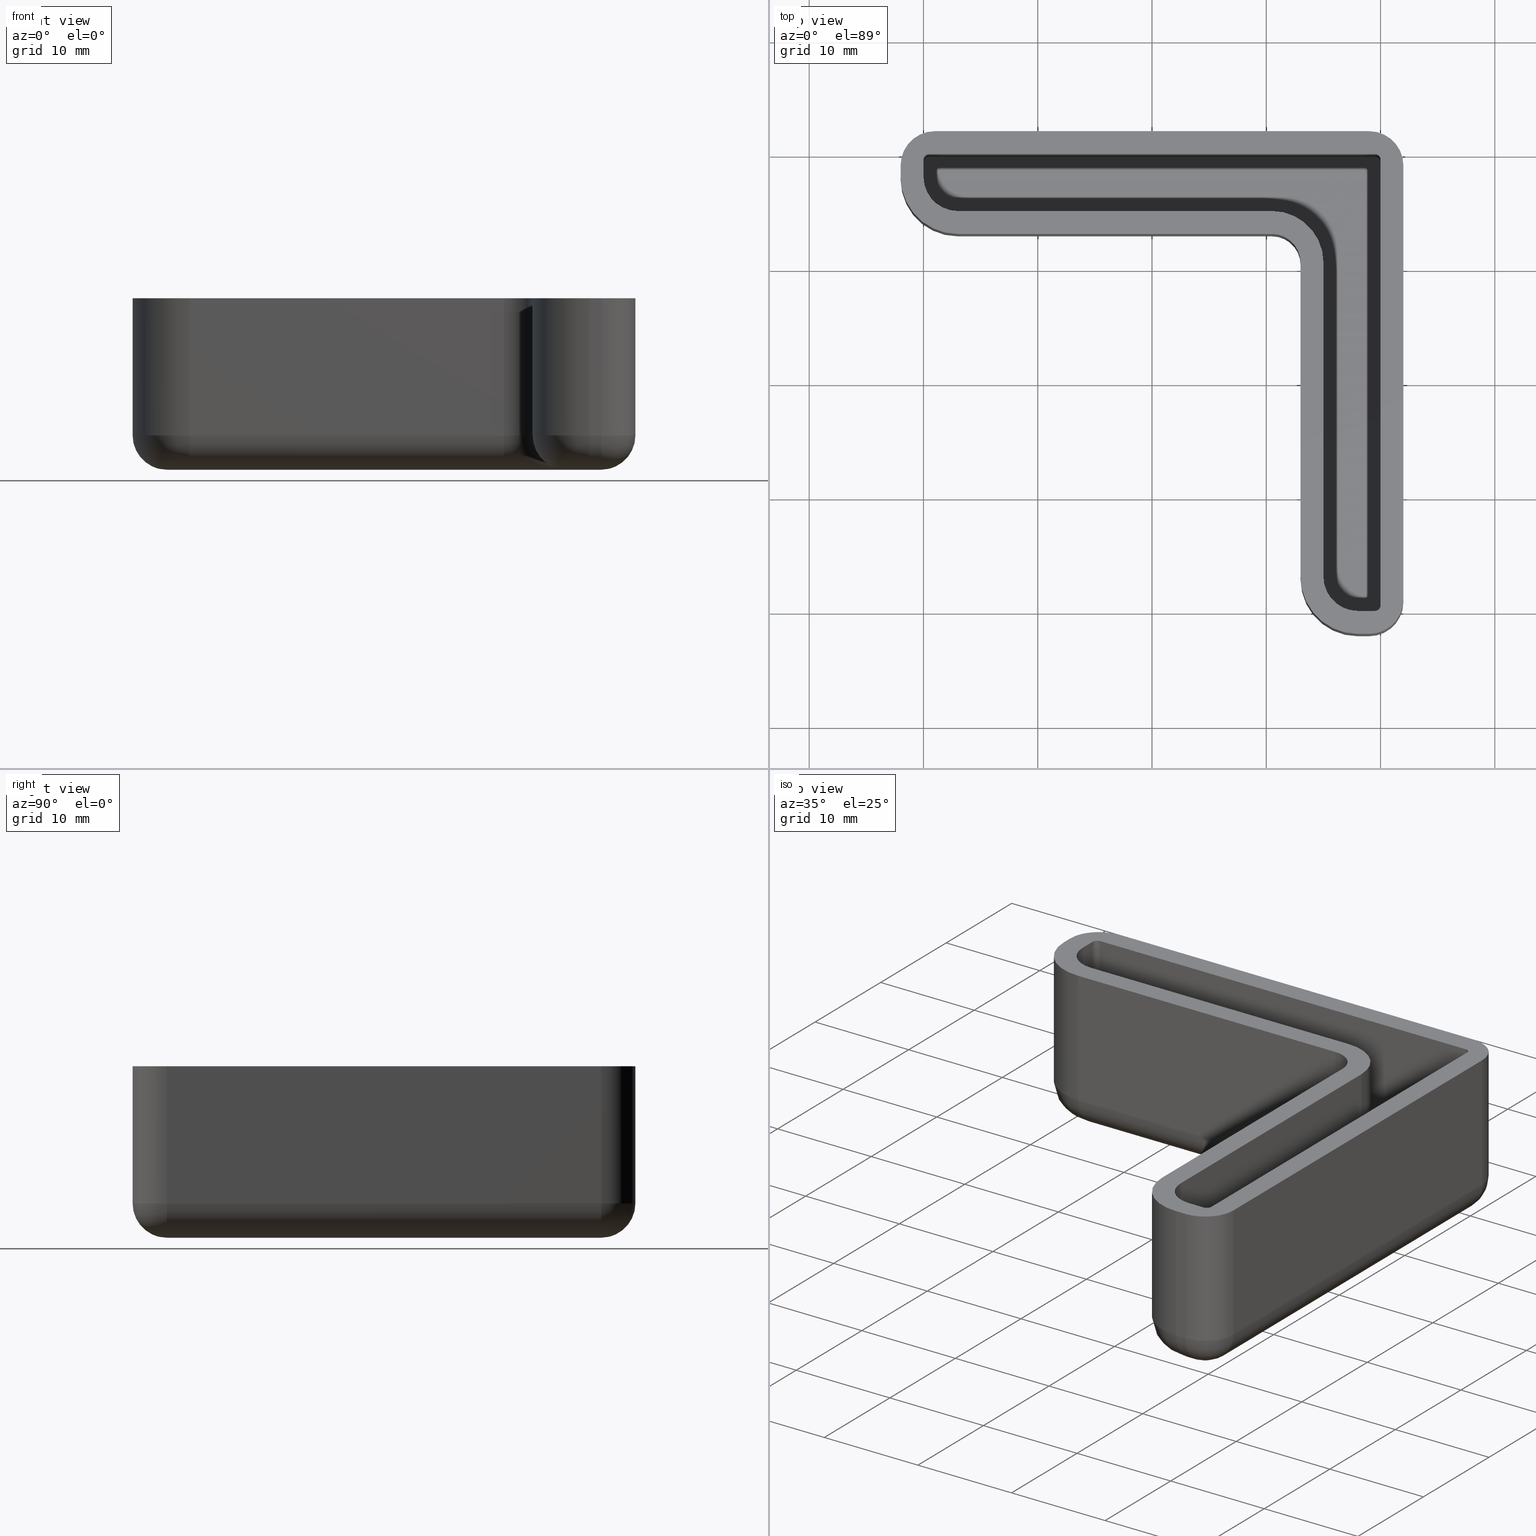
[diagram: canonical four-view strip — front | top / right | iso, engineering-drawing reading convention]
A machine part, canonical four-view strip (front | top / right | iso — engineering-drawing reading convention). The complete STEP part file that produces these views, byte-faithful:
ISO-10303-21;
HEADER;
FILE_DESCRIPTION( ( 'STEP AP203' ), '1' );
FILE_NAME( 'C:/Documents and Settings/JP/�f�X�N�g�b�v/�_�E�����[�h�pCAD�f�[�^/���ӎR�`�|/L40E/L40E.step', '2022-07-22T02:03:37', ( ' ' ), ( ' ' ), 'XStep 1.0', ' ', ' ' );
FILE_SCHEMA( ( 'CONFIG_CONTROL_DESIGN' ) );
ENDSEC;
DATA;
#1 = DESIGN_CONTEXT( '', #27, 'design' );
#2 = APPLICATION_PROTOCOL_DEFINITION( 'INTERNATIONAL STANDARD', 'config_control_design', 1994, #27 );
#3 = PRODUCT_CATEGORY_RELATIONSHIP( 'NONE', 'NONE', #28, #29 );
#4 = DATE_AND_TIME( #30, #31 );
#5 = DATE_TIME_ROLE( 'creation_date' );
#6 = DATE_TIME_ROLE( 'classification_date' );
#7 = PERSON_AND_ORGANIZATION_ROLE( 'creator' );
#8 = PERSON_AND_ORGANIZATION_ROLE( 'design_supplier' );
#9 = PERSON_AND_ORGANIZATION_ROLE( 'classification_officer' );
#10 = PERSON_AND_ORGANIZATION_ROLE( 'design_owner' );
#11 = APPROVAL_PERSON_ORGANIZATION( #32, #33, #34 );
#12 = APPROVAL_DATE_TIME( #4, #33 );
#13 = CC_DESIGN_APPROVAL( #33, ( #35, #36, #37 ) );
#14 = CC_DESIGN_DATE_AND_TIME_ASSIGNMENT( #4, #5, ( #37 ) );
#15 = CC_DESIGN_DATE_AND_TIME_ASSIGNMENT( #4, #6, ( #35 ) );
#16 = CC_DESIGN_PERSON_AND_ORGANIZATION_ASSIGNMENT( #32, #10, ( #38 ) );
#17 = CC_DESIGN_PERSON_AND_ORGANIZATION_ASSIGNMENT( #32, #7, ( #37 ) );
#18 = CC_DESIGN_PERSON_AND_ORGANIZATION_ASSIGNMENT( #32, #7, ( #36 ) );
#19 = CC_DESIGN_PERSON_AND_ORGANIZATION_ASSIGNMENT( #32, #8, ( #36 ) );
#20 = CC_DESIGN_SECURITY_CLASSIFICATION( #35, ( #36 ) );
#21 = CC_DESIGN_PERSON_AND_ORGANIZATION_ASSIGNMENT( #32, #9, ( #35 ) );
#22 = SHAPE_DEFINITION_REPRESENTATION( #39, #40 );
#23 =  ( GEOMETRIC_REPRESENTATION_CONTEXT( 3 )GLOBAL_UNCERTAINTY_ASSIGNED_CONTEXT( ( #43 ) )GLOBAL_UNIT_ASSIGNED_CONTEXT( ( #45, #46, #47 ) )REPRESENTATION_CONTEXT( 'NONE', 'WORKSPACE' ) );
#27 = APPLICATION_CONTEXT( 'CONFIGURATION CONTROLLED 3D DESIGNS OF MECHANICAL PARTS AND ASSEMBLIES' );
#28 = PRODUCT_CATEGORY( 'part', 'NONE' );
#29 = PRODUCT_RELATED_PRODUCT_CATEGORY( 'detail', ' ', ( #38 ) );
#30 = CALENDAR_DATE( 2022, 22, 6 );
#31 = LOCAL_TIME( 11, 3, 37.0000000000000, #49 );
#32 = PERSON_AND_ORGANIZATION( #50, #51 );
#33 = APPROVAL( #52, 'SOLID MODEL' );
#34 = APPROVAL_ROLE( 'APPROVED' );
#35 = SECURITY_CLASSIFICATION( '', '', #53 );
#36 = PRODUCT_DEFINITION_FORMATION_WITH_SPECIFIED_SOURCE( ' ', 'NONE', #38, .NOT_KNOWN. );
#37 = PRODUCT_DEFINITION( 'NONE', 'NONE', #36, #1 );
#38 = PRODUCT( '1', '1', 'PART-1-DESC', ( #54 ) );
#39 = PRODUCT_DEFINITION_SHAPE( 'NONE', 'NONE', #37 );
#40 = ADVANCED_BREP_SHAPE_REPRESENTATION( '1', ( #55, #56 ), #23 );
#43 = UNCERTAINTY_MEASURE_WITH_UNIT( LENGTH_MEASURE( 0.00100000000000000 ), #45, '', '' );
#45 =  ( CONVERSION_BASED_UNIT( 'MILLIMETRE', #59 )LENGTH_UNIT(  )NAMED_UNIT( #62 ) );
#46 =  ( NAMED_UNIT( #64 )PLANE_ANGLE_UNIT(  )SI_UNIT( $, .RADIAN. ) );
#47 =  ( NAMED_UNIT( #64 )SOLID_ANGLE_UNIT(  )SI_UNIT( $, .STERADIAN. ) );
#49 = COORDINATED_UNIVERSAL_TIME_OFFSET( 9, 0, .AHEAD. );
#50 = PERSON( '', 'UNSPECIFIED', $, $, $, $ );
#51 = ORGANIZATION( 'UNSPECIFIED', 'UNSPECIFIED', 'UNSPECIFIED' );
#52 = APPROVAL_STATUS( 'approved' );
#53 = SECURITY_CLASSIFICATION_LEVEL( 'unclassified' );
#54 = MECHANICAL_CONTEXT( '', #27, 'mechanical' );
#55 = MANIFOLD_SOLID_BREP( '1', #70 );
#56 = AXIS2_PLACEMENT_3D( '', #71, #72, #73 );
#59 = LENGTH_MEASURE_WITH_UNIT( LENGTH_MEASURE( 1.00000000000000 ), #74 );
#62 = DIMENSIONAL_EXPONENTS( 1.00000000000000, 0.000000000000000, 0.000000000000000, 0.000000000000000, 0.000000000000000, 0.000000000000000, 0.000000000000000 );
#64 = DIMENSIONAL_EXPONENTS( 0.000000000000000, 0.000000000000000, 0.000000000000000, 0.000000000000000, 0.000000000000000, 0.000000000000000, 0.000000000000000 );
#70 = CLOSED_SHELL( '', ( #75, #76, #77, #78, #79, #80, #81, #82, #83, #84, #85, #86, #87, #88, #89, #90, #91, #92, #93, #94, #95, #96, #97, #98, #99, #100, #101, #102, #103, #104, #105, #106, #107, #108, #109, #110, #111, #112, #113 ) );
#71 = CARTESIAN_POINT( '', ( 0.000000000000000, 0.000000000000000, 0.000000000000000 ) );
#72 = DIRECTION( '', ( 0.000000000000000, 0.000000000000000, 1.00000000000000 ) );
#73 = DIRECTION( '', ( 1.00000000000000, 0.000000000000000, 0.000000000000000 ) );
#74 =  ( NAMED_UNIT( #62 )LENGTH_UNIT(  )SI_UNIT( .MILLI., .METRE. ) );
#75 = ADVANCED_FACE( '', ( #115, #116 ), #117, .T. );
#76 = ADVANCED_FACE( '', ( #118 ), #119, .T. );
#77 = ADVANCED_FACE( '', ( #120 ), #121, .F. );
#78 = ADVANCED_FACE( '', ( #122 ), #123, .T. );
#79 = ADVANCED_FACE( '', ( #124 ), #125, .T. );
#80 = ADVANCED_FACE( '', ( #126 ), #127, .T. );
#81 = ADVANCED_FACE( '', ( #128 ), #129, .T. );
#82 = ADVANCED_FACE( '', ( #130 ), #131, .T. );
#83 = ADVANCED_FACE( '', ( #132 ), #133, .T. );
#84 = ADVANCED_FACE( '', ( #134 ), #135, .T. );
#85 = ADVANCED_FACE( '', ( #136 ), #137, .T. );
#86 = ADVANCED_FACE( '', ( #138 ), #139, .T. );
#87 = ADVANCED_FACE( '', ( #140 ), #141, .F. );
#88 = ADVANCED_FACE( '', ( #142 ), #143, .T. );
#89 = ADVANCED_FACE( '', ( #144 ), #145, .T. );
#90 = ADVANCED_FACE( '', ( #146 ), #147, .T. );
#91 = ADVANCED_FACE( '', ( #148 ), #149, .F. );
#92 = ADVANCED_FACE( '', ( #150 ), #151, .T. );
#93 = ADVANCED_FACE( '', ( #152 ), #153, .T. );
#94 = ADVANCED_FACE( '', ( #154 ), #155, .T. );
#95 = ADVANCED_FACE( '', ( #156 ), #157, .T. );
#96 = ADVANCED_FACE( '', ( #158 ), #159, .T. );
#97 = ADVANCED_FACE( '', ( #160 ), #161, .T. );
#98 = ADVANCED_FACE( '', ( #162 ), #163, .T. );
#99 = ADVANCED_FACE( '', ( #164 ), #165, .T. );
#100 = ADVANCED_FACE( '', ( #166 ), #167, .T. );
#101 = ADVANCED_FACE( '', ( #168 ), #169, .T. );
#102 = ADVANCED_FACE( '', ( #170 ), #171, .T. );
#103 = ADVANCED_FACE( '', ( #172 ), #173, .T. );
#104 = ADVANCED_FACE( '', ( #174 ), #175, .T. );
#105 = ADVANCED_FACE( '', ( #176 ), #177, .T. );
#106 = ADVANCED_FACE( '', ( #178 ), #179, .F. );
#107 = ADVANCED_FACE( '', ( #180 ), #181, .T. );
#108 = ADVANCED_FACE( '', ( #182 ), #183, .T. );
#109 = ADVANCED_FACE( '', ( #184 ), #185, .F. );
#110 = ADVANCED_FACE( '', ( #186 ), #187, .T. );
#111 = ADVANCED_FACE( '', ( #188 ), #189, .F. );
#112 = ADVANCED_FACE( '', ( #190 ), #191, .T. );
#113 = ADVANCED_FACE( '', ( #192 ), #193, .F. );
#115 = FACE_OUTER_BOUND( '', #194, .T. );
#116 = FACE_BOUND( '', #195, .T. );
#117 = PLANE( '', #196 );
#118 = FACE_OUTER_BOUND( '', #197, .T. );
#119 = CYLINDRICAL_SURFACE( '', #198, 3.00000000000000 );
#120 = FACE_OUTER_BOUND( '', #199, .T. );
#121 = CYLINDRICAL_SURFACE( '', #200, 0.500000000000000 );
#122 = FACE_OUTER_BOUND( '', #201, .T. );
#123 = PLANE( '', #202 );
#124 = FACE_OUTER_BOUND( '', #203, .T. );
#125 = PLANE( '', #204 );
#126 = FACE_OUTER_BOUND( '', #205, .T. );
#127 = PLANE( '', #206 );
#128 = FACE_OUTER_BOUND( '', #207, .T. );
#129 = CYLINDRICAL_SURFACE( '', #208, 3.00000000000000 );
#130 = FACE_OUTER_BOUND( '', #209, .T. );
#131 = PLANE( '', #210 );
#132 = FACE_OUTER_BOUND( '', #211, .T. );
#133 = CYLINDRICAL_SURFACE( '', #212, 3.00000000000000 );
#134 = FACE_OUTER_BOUND( '', #213, .T. );
#135 = PLANE( '', #214 );
#136 = FACE_OUTER_BOUND( '', #215, .T. );
#137 = CYLINDRICAL_SURFACE( '', #216, 5.00000000000000 );
#138 = FACE_OUTER_BOUND( '', #217, .T. );
#139 = PLANE( '', #218 );
#140 = FACE_OUTER_BOUND( '', #219, .T. );
#141 = CYLINDRICAL_SURFACE( '', #220, 2.50000000000000 );
#142 = FACE_OUTER_BOUND( '', #221, .T. );
#143 = PLANE( '', #222 );
#144 = FACE_OUTER_BOUND( '', #223, .T. );
#145 = CYLINDRICAL_SURFACE( '', #224, 5.00000000000000 );
#146 = FACE_OUTER_BOUND( '', #225, .T. );
#147 = PLANE( '', #226 );
#148 = FACE_OUTER_BOUND( '', #227, .T. );
#149 = PLANE( '', #228 );
#150 = FACE_OUTER_BOUND( '', #229, .T. );
#151 = CYLINDRICAL_SURFACE( '', #230, 3.00000000000000 );
#152 = FACE_OUTER_BOUND( '', #231, .T. );
#153 = SPHERICAL_SURFACE( '', #232, 3.00000000000000 );
#154 = FACE_OUTER_BOUND( '', #233, .T. );
#155 = SPHERICAL_SURFACE( '', #234, 3.00000000000000 );
#156 = FACE_OUTER_BOUND( '', #235, .T. );
#157 = CYLINDRICAL_SURFACE( '', #236, 3.00000000000000 );
#158 = FACE_OUTER_BOUND( '', #237, .T. );
#159 = CYLINDRICAL_SURFACE( '', #238, 3.00000000000000 );
#160 = FACE_OUTER_BOUND( '', #239, .T. );
#161 = SPHERICAL_SURFACE( '', #240, 3.00000000000000 );
#162 = FACE_OUTER_BOUND( '', #241, .T. );
#163 = ( B_SPLINE_SURFACE( 3, 3, ( ( #243, #244, #245, #246 ), ( #247, #248, #249, #250 ), ( #251, #252, #253, #254 ), ( #255, #256, #257, #258 ) ), .UNSPECIFIED., .F., .F., .F. )B_SPLINE_SURFACE_WITH_KNOTS( ( 4, 4 ), ( 4, 4 ), ( 0.000000000000000, 1.57079632679490 ), ( -1.57079632679490, 0.000000000000000 ), .UNSPECIFIED. )RATIONAL_B_SPLINE_SURFACE( ( ( 1.00000000000000, 0.804737854124365, 0.804737854124365, 1.00000000000000 ), ( 0.804737854124365, 0.647603013860688, 0.647603013860688, 0.804737854124365 ), ( 0.804737854124365, 0.647603013860688, 0.647603013860688, 0.804737854124365 ), ( 1.00000000000000, 0.804737854124365, 0.804737854124365, 1.00000000000000 ) ) )BOUNDED_SURFACE(  )REPRESENTATION_ITEM( '' )GEOMETRIC_REPRESENTATION_ITEM(  )SURFACE(  ) );
#164 = FACE_OUTER_BOUND( '', #265, .T. );
#165 = CYLINDRICAL_SURFACE( '', #266, 3.00000000000000 );
#166 = FACE_OUTER_BOUND( '', #267, .T. );
#167 = CYLINDRICAL_SURFACE( '', #268, 3.00000000000000 );
#168 = FACE_OUTER_BOUND( '', #269, .T. );
#169 = ( B_SPLINE_SURFACE( 3, 3, ( ( #271, #272, #273, #274 ), ( #275, #276, #277, #278 ), ( #279, #280, #281, #282 ), ( #283, #284, #285, #286 ) ), .UNSPECIFIED., .F., .F., .F. )B_SPLINE_SURFACE_WITH_KNOTS( ( 4, 4 ), ( 4, 4 ), ( -1.77635683940025E-015, 1.57079632679490 ), ( -1.57079632679490, 0.000000000000000 ), .UNSPECIFIED. )RATIONAL_B_SPLINE_SURFACE( ( ( 1.00000000000000, 0.804737854124365, 0.804737854124365, 1.00000000000000 ), ( 0.804737854124365, 0.647603013860688, 0.647603013860688, 0.804737854124365 ), ( 0.804737854124365, 0.647603013860688, 0.647603013860688, 0.804737854124365 ), ( 1.00000000000000, 0.804737854124365, 0.804737854124365, 1.00000000000000 ) ) )BOUNDED_SURFACE(  )REPRESENTATION_ITEM( '' )GEOMETRIC_REPRESENTATION_ITEM(  )SURFACE(  ) );
#170 = FACE_OUTER_BOUND( '', #293, .T. );
#171 = TOROIDAL_SURFACE( '', #294, 5.50000000000000, 3.00000000000000 );
#172 = FACE_OUTER_BOUND( '', #295, .T. );
#173 = CYLINDRICAL_SURFACE( '', #296, 3.00000000000000 );
#174 = FACE_OUTER_BOUND( '', #297, .T. );
#175 = PLANE( '', #298 );
#176 = FACE_OUTER_BOUND( '', #299, .T. );
#177 = PLANE( '', #300 );
#178 = FACE_OUTER_BOUND( '', #301, .T. );
#179 = CYLINDRICAL_SURFACE( '', #302, 3.00000000000000 );
#180 = FACE_OUTER_BOUND( '', #303, .T. );
#181 = CYLINDRICAL_SURFACE( '', #304, 4.50000000000000 );
#182 = FACE_OUTER_BOUND( '', #305, .T. );
#183 = PLANE( '', #306 );
#184 = FACE_OUTER_BOUND( '', #307, .T. );
#185 = CYLINDRICAL_SURFACE( '', #308, 3.00000000000000 );
#186 = FACE_OUTER_BOUND( '', #309, .T. );
#187 = PLANE( '', #310 );
#188 = FACE_OUTER_BOUND( '', #311, .T. );
#189 = CYLINDRICAL_SURFACE( '', #312, 0.500000000000000 );
#190 = FACE_OUTER_BOUND( '', #313, .T. );
#191 = PLANE( '', #314 );
#192 = FACE_OUTER_BOUND( '', #315, .T. );
#193 = CYLINDRICAL_SURFACE( '', #316, 0.500000000000000 );
#194 = EDGE_LOOP( '', ( #317, #318, #319, #320, #321, #322, #323, #324, #325, #326, #327, #328 ) );
#195 = EDGE_LOOP( '', ( #329, #330, #331, #332, #333, #334, #335, #336, #337, #338, #339, #340 ) );
#196 = AXIS2_PLACEMENT_3D( '', #341, #342, #343 );
#197 = EDGE_LOOP( '', ( #344, #345, #346, #347 ) );
#198 = AXIS2_PLACEMENT_3D( '', #348, #349, #350 );
#199 = EDGE_LOOP( '', ( #351, #352, #353, #354 ) );
#200 = AXIS2_PLACEMENT_3D( '', #355, #356, #357 );
#201 = EDGE_LOOP( '', ( #358, #359, #360, #361 ) );
#202 = AXIS2_PLACEMENT_3D( '', #362, #363, #364 );
#203 = EDGE_LOOP( '', ( #365, #366, #367, #368, #369, #370, #371, #372, #373, #374, #375, #376 ) );
#204 = AXIS2_PLACEMENT_3D( '', #377, #378, #379 );
#205 = EDGE_LOOP( '', ( #380, #381, #382, #383 ) );
#206 = AXIS2_PLACEMENT_3D( '', #384, #385, #386 );
#207 = EDGE_LOOP( '', ( #387, #388, #389, #390 ) );
#208 = AXIS2_PLACEMENT_3D( '', #391, #392, #393 );
#209 = EDGE_LOOP( '', ( #394, #395, #396, #397 ) );
#210 = AXIS2_PLACEMENT_3D( '', #398, #399, #400 );
#211 = EDGE_LOOP( '', ( #401, #402, #403, #404 ) );
#212 = AXIS2_PLACEMENT_3D( '', #405, #406, #407 );
#213 = EDGE_LOOP( '', ( #408, #409, #410, #411 ) );
#214 = AXIS2_PLACEMENT_3D( '', #412, #413, #414 );
#215 = EDGE_LOOP( '', ( #415, #416, #417, #418 ) );
#216 = AXIS2_PLACEMENT_3D( '', #419, #420, #421 );
#217 = EDGE_LOOP( '', ( #422, #423, #424, #425 ) );
#218 = AXIS2_PLACEMENT_3D( '', #426, #427, #428 );
#219 = EDGE_LOOP( '', ( #429, #430, #431, #432 ) );
#220 = AXIS2_PLACEMENT_3D( '', #433, #434, #435 );
#221 = EDGE_LOOP( '', ( #436, #437, #438, #439 ) );
#222 = AXIS2_PLACEMENT_3D( '', #440, #441, #442 );
#223 = EDGE_LOOP( '', ( #443, #444, #445, #446 ) );
#224 = AXIS2_PLACEMENT_3D( '', #447, #448, #449 );
#225 = EDGE_LOOP( '', ( #450, #451, #452, #453 ) );
#226 = AXIS2_PLACEMENT_3D( '', #454, #455, #456 );
#227 = EDGE_LOOP( '', ( #457, #458, #459, #460, #461, #462, #463, #464, #465 ) );
#228 = AXIS2_PLACEMENT_3D( '', #466, #467, #468 );
#229 = EDGE_LOOP( '', ( #469, #470, #471, #472 ) );
#230 = AXIS2_PLACEMENT_3D( '', #473, #474, #475 );
#231 = EDGE_LOOP( '', ( #476, #477, #478 ) );
#232 = AXIS2_PLACEMENT_3D( '', #479, #480, #481 );
#233 = EDGE_LOOP( '', ( #482, #483, #484 ) );
#234 = AXIS2_PLACEMENT_3D( '', #485, #486, #487 );
#235 = EDGE_LOOP( '', ( #488, #489, #490, #491 ) );
#236 = AXIS2_PLACEMENT_3D( '', #492, #493, #494 );
#237 = EDGE_LOOP( '', ( #495, #496, #497, #498 ) );
#238 = AXIS2_PLACEMENT_3D( '', #499, #500, #501 );
#239 = EDGE_LOOP( '', ( #502, #503, #504 ) );
#240 = AXIS2_PLACEMENT_3D( '', #505, #506, #507 );
#241 = EDGE_LOOP( '', ( #508, #509, #510, #511 ) );
#243 = CARTESIAN_POINT( '', ( -7.00000000000001, -37.0000000000000, -12.0000000000000 ) );
#244 = CARTESIAN_POINT( '', ( -7.00000000000001, -39.9289321881345, -12.0000000000000 ) );
#245 = CARTESIAN_POINT( '', ( -4.92893218813453, -42.0000000000000, -12.0000000000000 ) );
#246 = CARTESIAN_POINT( '', ( -2.00000000000001, -42.0000000000000, -12.0000000000000 ) );
#247 = CARTESIAN_POINT( '', ( -7.00000000000001, -37.0000000000000, -13.7573593128807 ) );
#248 = CARTESIAN_POINT( '', ( -7.00000000000001, -39.9289321881345, -13.7573593128807 ) );
#249 = CARTESIAN_POINT( '', ( -4.92893218813453, -42.0000000000000, -13.7573593128807 ) );
#250 = CARTESIAN_POINT( '', ( -2.00000000000001, -42.0000000000000, -13.7573593128807 ) );
#251 = CARTESIAN_POINT( '', ( -5.75735931288072, -37.0000000000000, -15.0000000000000 ) );
#252 = CARTESIAN_POINT( '', ( -5.75735931288072, -39.2010101267767, -15.0000000000000 ) );
#253 = CARTESIAN_POINT( '', ( -4.20101012677667, -40.7573593128807, -15.0000000000000 ) );
#254 = CARTESIAN_POINT( '', ( -2.00000000000001, -40.7573593128807, -15.0000000000000 ) );
#255 = CARTESIAN_POINT( '', ( -4.00000000000001, -37.0000000000000, -15.0000000000000 ) );
#256 = CARTESIAN_POINT( '', ( -4.00000000000001, -38.1715728752538, -15.0000000000000 ) );
#257 = CARTESIAN_POINT( '', ( -3.17157287525382, -39.0000000000000, -15.0000000000000 ) );
#258 = CARTESIAN_POINT( '', ( -2.00000000000001, -39.0000000000000, -15.0000000000000 ) );
#265 = EDGE_LOOP( '', ( #512, #513, #514, #515 ) );
#266 = AXIS2_PLACEMENT_3D( '', #516, #517, #518 );
#267 = EDGE_LOOP( '', ( #519, #520, #521, #522 ) );
#268 = AXIS2_PLACEMENT_3D( '', #523, #524, #525 );
#269 = EDGE_LOOP( '', ( #526, #527, #528, #529 ) );
#271 = CARTESIAN_POINT( '', ( -42.0000000000000, -1.99999999999999, -12.0000000000000 ) );
#272 = CARTESIAN_POINT( '', ( -42.0000000000000, -4.92893218813452, -12.0000000000000 ) );
#273 = CARTESIAN_POINT( '', ( -39.9289321881345, -7.00000000000001, -12.0000000000000 ) );
#274 = CARTESIAN_POINT( '', ( -37.0000000000000, -7.00000000000001, -12.0000000000000 ) );
#275 = CARTESIAN_POINT( '', ( -42.0000000000000, -1.99999999999999, -13.7573593128807 ) );
#276 = CARTESIAN_POINT( '', ( -42.0000000000000, -4.92893218813452, -13.7573593128807 ) );
#277 = CARTESIAN_POINT( '', ( -39.9289321881345, -7.00000000000001, -13.7573593128807 ) );
#278 = CARTESIAN_POINT( '', ( -37.0000000000000, -7.00000000000001, -13.7573593128807 ) );
#279 = CARTESIAN_POINT( '', ( -40.7573593128807, -2.00000000000000, -15.0000000000000 ) );
#280 = CARTESIAN_POINT( '', ( -40.7573593128807, -4.20101012677667, -15.0000000000000 ) );
#281 = CARTESIAN_POINT( '', ( -39.2010101267767, -5.75735931288073, -15.0000000000000 ) );
#282 = CARTESIAN_POINT( '', ( -37.0000000000000, -5.75735931288073, -15.0000000000000 ) );
#283 = CARTESIAN_POINT( '', ( -39.0000000000000, -2.00000000000000, -15.0000000000000 ) );
#284 = CARTESIAN_POINT( '', ( -39.0000000000000, -3.17157287525381, -15.0000000000000 ) );
#285 = CARTESIAN_POINT( '', ( -38.1715728752538, -4.00000000000001, -15.0000000000000 ) );
#286 = CARTESIAN_POINT( '', ( -37.0000000000000, -4.00000000000001, -15.0000000000000 ) );
#293 = EDGE_LOOP( '', ( #530, #531, #532, #533 ) );
#294 = AXIS2_PLACEMENT_3D( '', #534, #535, #536 );
#295 = EDGE_LOOP( '', ( #537, #538, #539, #540 ) );
#296 = AXIS2_PLACEMENT_3D( '', #541, #542, #543 );
#297 = EDGE_LOOP( '', ( #544, #545, #546, #547 ) );
#298 = AXIS2_PLACEMENT_3D( '', #548, #549, #550 );
#299 = EDGE_LOOP( '', ( #551, #552, #553, #554 ) );
#300 = AXIS2_PLACEMENT_3D( '', #555, #556, #557 );
#301 = EDGE_LOOP( '', ( #558, #559, #560, #561 ) );
#302 = AXIS2_PLACEMENT_3D( '', #562, #563, #564 );
#303 = EDGE_LOOP( '', ( #565, #566, #567, #568 ) );
#304 = AXIS2_PLACEMENT_3D( '', #569, #570, #571 );
#305 = EDGE_LOOP( '', ( #572, #573, #574, #575 ) );
#306 = AXIS2_PLACEMENT_3D( '', #576, #577, #578 );
#307 = EDGE_LOOP( '', ( #579, #580, #581, #582 ) );
#308 = AXIS2_PLACEMENT_3D( '', #583, #584, #585 );
#309 = EDGE_LOOP( '', ( #586, #587, #588, #589 ) );
#310 = AXIS2_PLACEMENT_3D( '', #590, #591, #592 );
#311 = EDGE_LOOP( '', ( #593, #594, #595, #596 ) );
#312 = AXIS2_PLACEMENT_3D( '', #597, #598, #599 );
#313 = EDGE_LOOP( '', ( #600, #601, #602, #603 ) );
#314 = AXIS2_PLACEMENT_3D( '', #604, #605, #606 );
#315 = EDGE_LOOP( '', ( #607, #608, #609, #610 ) );
#316 = AXIS2_PLACEMENT_3D( '', #611, #612, #613 );
#317 = ORIENTED_EDGE( '', *, *, #614, .T. );
#318 = ORIENTED_EDGE( '', *, *, #615, .T. );
#319 = ORIENTED_EDGE( '', *, *, #616, .T. );
#320 = ORIENTED_EDGE( '', *, *, #617, .T. );
#321 = ORIENTED_EDGE( '', *, *, #618, .T. );
#322 = ORIENTED_EDGE( '', *, *, #619, .T. );
#323 = ORIENTED_EDGE( '', *, *, #620, .T. );
#324 = ORIENTED_EDGE( '', *, *, #621, .T. );
#325 = ORIENTED_EDGE( '', *, *, #622, .T. );
#326 = ORIENTED_EDGE( '', *, *, #623, .T. );
#327 = ORIENTED_EDGE( '', *, *, #624, .T. );
#328 = ORIENTED_EDGE( '', *, *, #625, .T. );
#329 = ORIENTED_EDGE( '', *, *, #626, .T. );
#330 = ORIENTED_EDGE( '', *, *, #627, .T. );
#331 = ORIENTED_EDGE( '', *, *, #628, .T. );
#332 = ORIENTED_EDGE( '', *, *, #629, .T. );
#333 = ORIENTED_EDGE( '', *, *, #630, .T. );
#334 = ORIENTED_EDGE( '', *, *, #631, .T. );
#335 = ORIENTED_EDGE( '', *, *, #632, .T. );
#336 = ORIENTED_EDGE( '', *, *, #633, .T. );
#337 = ORIENTED_EDGE( '', *, *, #634, .T. );
#338 = ORIENTED_EDGE( '', *, *, #635, .T. );
#339 = ORIENTED_EDGE( '', *, *, #636, .T. );
#340 = ORIENTED_EDGE( '', *, *, #637, .T. );
#341 = CARTESIAN_POINT( '', ( -1.00000000000000, -39.0000000000000, 0.000000000000000 ) );
#342 = DIRECTION( '', ( 0.000000000000000, 0.000000000000000, 1.00000000000000 ) );
#343 = DIRECTION( '', ( 1.00000000000000, -1.83690953073357E-016, 0.000000000000000 ) );
#344 = ORIENTED_EDGE( '', *, *, #638, .F. );
#345 = ORIENTED_EDGE( '', *, *, #639, .T. );
#346 = ORIENTED_EDGE( '', *, *, #640, .T. );
#347 = ORIENTED_EDGE( '', *, *, #614, .F. );
#348 = CARTESIAN_POINT( '', ( -1.00000000000000, -39.0000000000000, -15.0000000000000 ) );
#349 = DIRECTION( '', ( 0.000000000000000, 0.000000000000000, -1.00000000000000 ) );
#350 = DIRECTION( '', ( 1.00000000000000, -1.83690953073357E-016, 0.000000000000000 ) );
#351 = ORIENTED_EDGE( '', *, *, #641, .T. );
#352 = ORIENTED_EDGE( '', *, *, #642, .F. );
#353 = ORIENTED_EDGE( '', *, *, #643, .F. );
#354 = ORIENTED_EDGE( '', *, *, #627, .F. );
#355 = CARTESIAN_POINT( '', ( -0.500000000000005, -39.5000000000000, 20.0000000000000 ) );
#356 = DIRECTION( '', ( 0.000000000000000, 0.000000000000000, 1.00000000000000 ) );
#357 = DIRECTION( '', ( -1.00000000000000, 1.83690953073357E-016, 0.000000000000000 ) );
#358 = ORIENTED_EDGE( '', *, *, #644, .T. );
#359 = ORIENTED_EDGE( '', *, *, #645, .F. );
#360 = ORIENTED_EDGE( '', *, *, #641, .F. );
#361 = ORIENTED_EDGE( '', *, *, #626, .F. );
#362 = CARTESIAN_POINT( '', ( -7.25579264639759E-015, -39.5000000000000, 20.0000000000000 ) );
#363 = DIRECTION( '', ( -1.00000000000000, 1.83690953073357E-016, 0.000000000000000 ) );
#364 = DIRECTION( '', ( -1.83690953073357E-016, -1.00000000000000, 0.000000000000000 ) );
#365 = ORIENTED_EDGE( '', *, *, #642, .T. );
#366 = ORIENTED_EDGE( '', *, *, #645, .T. );
#367 = ORIENTED_EDGE( '', *, *, #646, .T. );
#368 = ORIENTED_EDGE( '', *, *, #647, .T. );
#369 = ORIENTED_EDGE( '', *, *, #648, .T. );
#370 = ORIENTED_EDGE( '', *, *, #649, .T. );
#371 = ORIENTED_EDGE( '', *, *, #650, .T. );
#372 = ORIENTED_EDGE( '', *, *, #651, .T. );
#373 = ORIENTED_EDGE( '', *, *, #652, .T. );
#374 = ORIENTED_EDGE( '', *, *, #653, .T. );
#375 = ORIENTED_EDGE( '', *, *, #654, .T. );
#376 = ORIENTED_EDGE( '', *, *, #655, .T. );
#377 = CARTESIAN_POINT( '', ( -0.500000000000005, -39.5000000000000, -13.0000000000000 ) );
#378 = DIRECTION( '', ( 0.000000000000000, 0.000000000000000, 1.00000000000000 ) );
#379 = DIRECTION( '', ( 1.00000000000000, -1.83690953073357E-016, 0.000000000000000 ) );
#380 = ORIENTED_EDGE( '', *, *, #640, .F. );
#381 = ORIENTED_EDGE( '', *, *, #656, .T. );
#382 = ORIENTED_EDGE( '', *, *, #657, .T. );
#383 = ORIENTED_EDGE( '', *, *, #615, .F. );
#384 = CARTESIAN_POINT( '', ( 1.99999999999999, -39.0000000000000, -15.0000000000000 ) );
#385 = DIRECTION( '', ( 1.00000000000000, -1.83690953073357E-016, 0.000000000000000 ) );
#386 = DIRECTION( '', ( -1.83690953073357E-016, -1.00000000000000, 0.000000000000000 ) );
#387 = ORIENTED_EDGE( '', *, *, #657, .F. );
#388 = ORIENTED_EDGE( '', *, *, #658, .T. );
#389 = ORIENTED_EDGE( '', *, *, #659, .T. );
#390 = ORIENTED_EDGE( '', *, *, #616, .F. );
#391 = CARTESIAN_POINT( '', ( -1.00000000000000, -1.00000000000000, -15.0000000000000 ) );
#392 = DIRECTION( '', ( 0.000000000000000, 0.000000000000000, -1.00000000000000 ) );
#393 = DIRECTION( '', ( 1.00000000000000, -1.83690953073357E-016, 0.000000000000000 ) );
#394 = ORIENTED_EDGE( '', *, *, #659, .F. );
#395 = ORIENTED_EDGE( '', *, *, #660, .T. );
#396 = ORIENTED_EDGE( '', *, *, #661, .T. );
#397 = ORIENTED_EDGE( '', *, *, #617, .F. );
#398 = CARTESIAN_POINT( '', ( -1.00000000000000, 2.00000000000000, -15.0000000000000 ) );
#399 = DIRECTION( '', ( 1.22460635382238E-016, 1.00000000000000, 0.000000000000000 ) );
#400 = DIRECTION( '', ( 1.00000000000000, -1.22460635382238E-016, 0.000000000000000 ) );
#401 = ORIENTED_EDGE( '', *, *, #661, .F. );
#402 = ORIENTED_EDGE( '', *, *, #662, .T. );
#403 = ORIENTED_EDGE( '', *, *, #663, .T. );
#404 = ORIENTED_EDGE( '', *, *, #618, .F. );
#405 = CARTESIAN_POINT( '', ( -39.0000000000000, -0.999999999999996, -15.0000000000000 ) );
#406 = DIRECTION( '', ( 0.000000000000000, 0.000000000000000, -1.00000000000000 ) );
#407 = DIRECTION( '', ( 1.00000000000000, -1.83690953073357E-016, 0.000000000000000 ) );
#408 = ORIENTED_EDGE( '', *, *, #663, .F. );
#409 = ORIENTED_EDGE( '', *, *, #664, .T. );
#410 = ORIENTED_EDGE( '', *, *, #665, .T. );
#411 = ORIENTED_EDGE( '', *, *, #619, .F. );
#412 = CARTESIAN_POINT( '', ( -42.0000000000000, -0.999999999999996, -15.0000000000000 ) );
#413 = DIRECTION( '', ( -1.00000000000000, 1.91849574421310E-016, 0.000000000000000 ) );
#414 = DIRECTION( '', ( 1.91849574421310E-016, 1.00000000000000, 0.000000000000000 ) );
#415 = ORIENTED_EDGE( '', *, *, #665, .F. );
#416 = ORIENTED_EDGE( '', *, *, #666, .T. );
#417 = ORIENTED_EDGE( '', *, *, #667, .T. );
#418 = ORIENTED_EDGE( '', *, *, #620, .F. );
#419 = CARTESIAN_POINT( '', ( -37.0000000000000, -2.00000000000000, -15.0000000000000 ) );
#420 = DIRECTION( '', ( 0.000000000000000, 0.000000000000000, -1.00000000000000 ) );
#421 = DIRECTION( '', ( 1.00000000000000, -1.83690953073357E-016, 0.000000000000000 ) );
#422 = ORIENTED_EDGE( '', *, *, #667, .F. );
#423 = ORIENTED_EDGE( '', *, *, #668, .T. );
#424 = ORIENTED_EDGE( '', *, *, #669, .T. );
#425 = ORIENTED_EDGE( '', *, *, #621, .F. );
#426 = CARTESIAN_POINT( '', ( -37.0000000000000, -7.00000000000000, -15.0000000000000 ) );
#427 = DIRECTION( '', ( -1.22460635382238E-016, -1.00000000000000, 0.000000000000000 ) );
#428 = DIRECTION( '', ( -1.00000000000000, 1.22460635382238E-016, 0.000000000000000 ) );
#429 = ORIENTED_EDGE( '', *, *, #669, .F. );
#430 = ORIENTED_EDGE( '', *, *, #670, .T. );
#431 = ORIENTED_EDGE( '', *, *, #671, .T. );
#432 = ORIENTED_EDGE( '', *, *, #622, .F. );
#433 = CARTESIAN_POINT( '', ( -9.50000000000001, -9.50000000000000, -15.0000000000000 ) );
#434 = DIRECTION( '', ( 0.000000000000000, 0.000000000000000, -1.00000000000000 ) );
#435 = DIRECTION( '', ( 1.00000000000000, -1.83690953073357E-016, 0.000000000000000 ) );
#436 = ORIENTED_EDGE( '', *, *, #671, .F. );
#437 = ORIENTED_EDGE( '', *, *, #672, .T. );
#438 = ORIENTED_EDGE( '', *, *, #673, .T. );
#439 = ORIENTED_EDGE( '', *, *, #623, .F. );
#440 = CARTESIAN_POINT( '', ( -7.00000000000000, -9.49999999999999, -15.0000000000000 ) );
#441 = DIRECTION( '', ( -1.00000000000000, 1.83175957041426E-016, 0.000000000000000 ) );
#442 = DIRECTION( '', ( 1.83175957041426E-016, 1.00000000000000, 0.000000000000000 ) );
#443 = ORIENTED_EDGE( '', *, *, #673, .F. );
#444 = ORIENTED_EDGE( '', *, *, #674, .T. );
#445 = ORIENTED_EDGE( '', *, *, #675, .T. );
#446 = ORIENTED_EDGE( '', *, *, #624, .F. );
#447 = CARTESIAN_POINT( '', ( -2.00000000000001, -37.0000000000000, -15.0000000000000 ) );
#448 = DIRECTION( '', ( 0.000000000000000, 0.000000000000000, -1.00000000000000 ) );
#449 = DIRECTION( '', ( 1.00000000000000, -1.83690953073357E-016, 0.000000000000000 ) );
#450 = ORIENTED_EDGE( '', *, *, #675, .F. );
#451 = ORIENTED_EDGE( '', *, *, #676, .T. );
#452 = ORIENTED_EDGE( '', *, *, #638, .T. );
#453 = ORIENTED_EDGE( '', *, *, #625, .F. );
#454 = CARTESIAN_POINT( '', ( -2.00000000000001, -42.0000000000000, -15.0000000000000 ) );
#455 = DIRECTION( '', ( -1.22460635382238E-016, -1.00000000000000, 0.000000000000000 ) );
#456 = DIRECTION( '', ( -1.00000000000000, 1.22460635382238E-016, 0.000000000000000 ) );
#457 = ORIENTED_EDGE( '', *, *, #677, .T. );
#458 = ORIENTED_EDGE( '', *, *, #678, .T. );
#459 = ORIENTED_EDGE( '', *, *, #679, .T. );
#460 = ORIENTED_EDGE( '', *, *, #680, .T. );
#461 = ORIENTED_EDGE( '', *, *, #681, .T. );
#462 = ORIENTED_EDGE( '', *, *, #682, .T. );
#463 = ORIENTED_EDGE( '', *, *, #683, .T. );
#464 = ORIENTED_EDGE( '', *, *, #684, .T. );
#465 = ORIENTED_EDGE( '', *, *, #685, .T. );
#466 = CARTESIAN_POINT( '', ( -1.00000000000000, -39.0000000000000, -15.0000000000000 ) );
#467 = DIRECTION( '', ( 0.000000000000000, 0.000000000000000, 1.00000000000000 ) );
#468 = DIRECTION( '', ( 1.00000000000000, -1.83690953073357E-016, 0.000000000000000 ) );
#469 = ORIENTED_EDGE( '', *, *, #686, .T. );
#470 = ORIENTED_EDGE( '', *, *, #678, .F. );
#471 = ORIENTED_EDGE( '', *, *, #687, .T. );
#472 = ORIENTED_EDGE( '', *, *, #656, .F. );
#473 = CARTESIAN_POINT( '', ( -1.00000000000001, -39.0000000000000, -12.0000000000000 ) );
#474 = DIRECTION( '', ( 1.83690953073357E-016, 1.00000000000000, 0.000000000000000 ) );
#475 = DIRECTION( '', ( 1.00000000000000, -1.83690953073357E-016, 0.000000000000000 ) );
#476 = ORIENTED_EDGE( '', *, *, #688, .T. );
#477 = ORIENTED_EDGE( '', *, *, #658, .F. );
#478 = ORIENTED_EDGE( '', *, *, #687, .F. );
#479 = CARTESIAN_POINT( '', ( -1.00000000000000, -1.00000000000000, -12.0000000000000 ) );
#480 = DIRECTION( '', ( 0.000000000000000, 0.000000000000000, 1.00000000000000 ) );
#481 = DIRECTION( '', ( -1.00000000000000, 1.22460635382238E-016, 0.000000000000000 ) );
#482 = ORIENTED_EDGE( '', *, *, #639, .F. );
#483 = ORIENTED_EDGE( '', *, *, #689, .T. );
#484 = ORIENTED_EDGE( '', *, *, #686, .F. );
#485 = CARTESIAN_POINT( '', ( -1.00000000000000, -39.0000000000000, -12.0000000000000 ) );
#486 = DIRECTION( '', ( 0.000000000000000, 0.000000000000000, 1.00000000000000 ) );
#487 = DIRECTION( '', ( -1.00000000000000, 1.22460635382238E-016, 0.000000000000000 ) );
#488 = ORIENTED_EDGE( '', *, *, #690, .T. );
#489 = ORIENTED_EDGE( '', *, *, #660, .F. );
#490 = ORIENTED_EDGE( '', *, *, #688, .F. );
#491 = ORIENTED_EDGE( '', *, *, #677, .F. );
#492 = CARTESIAN_POINT( '', ( -1.00000000000000, -0.999999999999998, -12.0000000000000 ) );
#493 = DIRECTION( '', ( -1.00000000000000, 1.22460635382238E-016, 0.000000000000000 ) );
#494 = DIRECTION( '', ( 0.000000000000000, 0.000000000000000, 1.00000000000000 ) );
#495 = ORIENTED_EDGE( '', *, *, #691, .T. );
#496 = ORIENTED_EDGE( '', *, *, #679, .F. );
#497 = ORIENTED_EDGE( '', *, *, #689, .F. );
#498 = ORIENTED_EDGE( '', *, *, #676, .F. );
#499 = CARTESIAN_POINT( '', ( -2.00000000000001, -39.0000000000000, -12.0000000000000 ) );
#500 = DIRECTION( '', ( 1.00000000000000, -1.22460635382238E-016, 0.000000000000000 ) );
#501 = DIRECTION( '', ( 0.000000000000000, 0.000000000000000, -1.00000000000000 ) );
#502 = ORIENTED_EDGE( '', *, *, #692, .T. );
#503 = ORIENTED_EDGE( '', *, *, #662, .F. );
#504 = ORIENTED_EDGE( '', *, *, #690, .F. );
#505 = CARTESIAN_POINT( '', ( -39.0000000000000, -0.999999999999996, -12.0000000000000 ) );
#506 = DIRECTION( '', ( 0.000000000000000, 0.000000000000000, 1.00000000000000 ) );
#507 = DIRECTION( '', ( -1.00000000000000, 1.22460635382238E-016, 0.000000000000000 ) );
#508 = ORIENTED_EDGE( '', *, *, #693, .T. );
#509 = ORIENTED_EDGE( '', *, *, #680, .F. );
#510 = ORIENTED_EDGE( '', *, *, #691, .F. );
#511 = ORIENTED_EDGE( '', *, *, #674, .F. );
#512 = ORIENTED_EDGE( '', *, *, #694, .T. );
#513 = ORIENTED_EDGE( '', *, *, #664, .F. );
#514 = ORIENTED_EDGE( '', *, *, #692, .F. );
#515 = ORIENTED_EDGE( '', *, *, #685, .F. );
#516 = CARTESIAN_POINT( '', ( -39.0000000000000, -0.999999999999996, -12.0000000000000 ) );
#517 = DIRECTION( '', ( -1.91849574421310E-016, -1.00000000000000, 0.000000000000000 ) );
#518 = DIRECTION( '', ( -1.00000000000000, 1.91849574421310E-016, 0.000000000000000 ) );
#519 = ORIENTED_EDGE( '', *, *, #695, .T. );
#520 = ORIENTED_EDGE( '', *, *, #681, .F. );
#521 = ORIENTED_EDGE( '', *, *, #693, .F. );
#522 = ORIENTED_EDGE( '', *, *, #672, .F. );
#523 = CARTESIAN_POINT( '', ( -4.00000000000000, -9.49999999999999, -12.0000000000000 ) );
#524 = DIRECTION( '', ( -1.83175957041426E-016, -1.00000000000000, 0.000000000000000 ) );
#525 = DIRECTION( '', ( -1.00000000000000, 1.83175957041426E-016, 0.000000000000000 ) );
#526 = ORIENTED_EDGE( '', *, *, #696, .T. );
#527 = ORIENTED_EDGE( '', *, *, #666, .F. );
#528 = ORIENTED_EDGE( '', *, *, #694, .F. );
#529 = ORIENTED_EDGE( '', *, *, #684, .F. );
#530 = ORIENTED_EDGE( '', *, *, #697, .T. );
#531 = ORIENTED_EDGE( '', *, *, #682, .F. );
#532 = ORIENTED_EDGE( '', *, *, #695, .F. );
#533 = ORIENTED_EDGE( '', *, *, #670, .F. );
#534 = CARTESIAN_POINT( '', ( -9.50000000000001, -9.50000000000000, -12.0000000000000 ) );
#535 = DIRECTION( '', ( 0.000000000000000, 0.000000000000000, 1.00000000000000 ) );
#536 = DIRECTION( '', ( -1.00000000000000, 1.22460635382238E-016, 0.000000000000000 ) );
#537 = ORIENTED_EDGE( '', *, *, #696, .F. );
#538 = ORIENTED_EDGE( '', *, *, #683, .F. );
#539 = ORIENTED_EDGE( '', *, *, #697, .F. );
#540 = ORIENTED_EDGE( '', *, *, #668, .F. );
#541 = CARTESIAN_POINT( '', ( -37.0000000000000, -4.00000000000000, -12.0000000000000 ) );
#542 = DIRECTION( '', ( 1.00000000000000, -1.22460635382238E-016, 0.000000000000000 ) );
#543 = DIRECTION( '', ( 0.000000000000000, 0.000000000000000, -1.00000000000000 ) );
#544 = ORIENTED_EDGE( '', *, *, #643, .T. );
#545 = ORIENTED_EDGE( '', *, *, #655, .F. );
#546 = ORIENTED_EDGE( '', *, *, #698, .F. );
#547 = ORIENTED_EDGE( '', *, *, #628, .F. );
#548 = CARTESIAN_POINT( '', ( -2.00000000000001, -40.0000000000000, 20.0000000000000 ) );
#549 = DIRECTION( '', ( 1.22460635382238E-016, 1.00000000000000, 0.000000000000000 ) );
#550 = DIRECTION( '', ( -1.00000000000000, 1.22460635382238E-016, 0.000000000000000 ) );
#551 = ORIENTED_EDGE( '', *, *, #699, .T. );
#552 = ORIENTED_EDGE( '', *, *, #653, .F. );
#553 = ORIENTED_EDGE( '', *, *, #700, .F. );
#554 = ORIENTED_EDGE( '', *, *, #630, .F. );
#555 = CARTESIAN_POINT( '', ( -5.00000000000000, -9.49999999999999, 20.0000000000000 ) );
#556 = DIRECTION( '', ( 1.00000000000000, -1.83175957041426E-016, 0.000000000000000 ) );
#557 = DIRECTION( '', ( 1.83175957041426E-016, 1.00000000000000, 0.000000000000000 ) );
#558 = ORIENTED_EDGE( '', *, *, #698, .T. );
#559 = ORIENTED_EDGE( '', *, *, #654, .F. );
#560 = ORIENTED_EDGE( '', *, *, #699, .F. );
#561 = ORIENTED_EDGE( '', *, *, #629, .F. );
#562 = CARTESIAN_POINT( '', ( -2.00000000000001, -37.0000000000000, 20.0000000000000 ) );
#563 = DIRECTION( '', ( 0.000000000000000, 0.000000000000000, 1.00000000000000 ) );
#564 = DIRECTION( '', ( -1.00000000000000, 1.83690953073357E-016, 0.000000000000000 ) );
#565 = ORIENTED_EDGE( '', *, *, #700, .T. );
#566 = ORIENTED_EDGE( '', *, *, #652, .F. );
#567 = ORIENTED_EDGE( '', *, *, #701, .F. );
#568 = ORIENTED_EDGE( '', *, *, #631, .F. );
#569 = CARTESIAN_POINT( '', ( -9.50000000000001, -9.50000000000000, 20.0000000000000 ) );
#570 = DIRECTION( '', ( 0.000000000000000, 0.000000000000000, 1.00000000000000 ) );
#571 = DIRECTION( '', ( -1.00000000000000, 1.83690953073357E-016, 0.000000000000000 ) );
#572 = ORIENTED_EDGE( '', *, *, #701, .T. );
#573 = ORIENTED_EDGE( '', *, *, #651, .F. );
#574 = ORIENTED_EDGE( '', *, *, #702, .F. );
#575 = ORIENTED_EDGE( '', *, *, #632, .F. );
#576 = CARTESIAN_POINT( '', ( -37.0000000000000, -5.00000000000000, 20.0000000000000 ) );
#577 = DIRECTION( '', ( 1.22460635382238E-016, 1.00000000000000, 0.000000000000000 ) );
#578 = DIRECTION( '', ( -1.00000000000000, 1.22460635382238E-016, 0.000000000000000 ) );
#579 = ORIENTED_EDGE( '', *, *, #702, .T. );
#580 = ORIENTED_EDGE( '', *, *, #650, .F. );
#581 = ORIENTED_EDGE( '', *, *, #703, .F. );
#582 = ORIENTED_EDGE( '', *, *, #633, .F. );
#583 = CARTESIAN_POINT( '', ( -37.0000000000000, -2.00000000000000, 20.0000000000000 ) );
#584 = DIRECTION( '', ( 0.000000000000000, 0.000000000000000, 1.00000000000000 ) );
#585 = DIRECTION( '', ( -1.00000000000000, 1.83690953073357E-016, 0.000000000000000 ) );
#586 = ORIENTED_EDGE( '', *, *, #703, .T. );
#587 = ORIENTED_EDGE( '', *, *, #649, .F. );
#588 = ORIENTED_EDGE( '', *, *, #704, .F. );
#589 = ORIENTED_EDGE( '', *, *, #634, .F. );
#590 = CARTESIAN_POINT( '', ( -40.0000000000000, -0.499999999999982, 20.0000000000000 ) );
#591 = DIRECTION( '', ( 1.00000000000000, -1.91849574421310E-016, 0.000000000000000 ) );
#592 = DIRECTION( '', ( 1.91849574421310E-016, 1.00000000000000, 0.000000000000000 ) );
#593 = ORIENTED_EDGE( '', *, *, #704, .T. );
#594 = ORIENTED_EDGE( '', *, *, #648, .F. );
#595 = ORIENTED_EDGE( '', *, *, #705, .F. );
#596 = ORIENTED_EDGE( '', *, *, #635, .F. );
#597 = CARTESIAN_POINT( '', ( -39.5000000000000, -0.499999999999996, 20.0000000000000 ) );
#598 = DIRECTION( '', ( 0.000000000000000, 0.000000000000000, 1.00000000000000 ) );
#599 = DIRECTION( '', ( -1.00000000000000, 1.83690953073357E-016, 0.000000000000000 ) );
#600 = ORIENTED_EDGE( '', *, *, #705, .T. );
#601 = ORIENTED_EDGE( '', *, *, #647, .F. );
#602 = ORIENTED_EDGE( '', *, *, #706, .F. );
#603 = ORIENTED_EDGE( '', *, *, #636, .F. );
#604 = CARTESIAN_POINT( '', ( -0.500000000000000, 6.12303176911189E-017, 20.0000000000000 ) );
#605 = DIRECTION( '', ( -1.22460635382238E-016, -1.00000000000000, 0.000000000000000 ) );
#606 = DIRECTION( '', ( 1.00000000000000, -1.22460635382238E-016, 0.000000000000000 ) );
#607 = ORIENTED_EDGE( '', *, *, #706, .T. );
#608 = ORIENTED_EDGE( '', *, *, #646, .F. );
#609 = ORIENTED_EDGE( '', *, *, #644, .F. );
#610 = ORIENTED_EDGE( '', *, *, #637, .F. );
#611 = CARTESIAN_POINT( '', ( -0.500000000000000, -0.500000000000000, 20.0000000000000 ) );
#612 = DIRECTION( '', ( 0.000000000000000, 0.000000000000000, 1.00000000000000 ) );
#613 = DIRECTION( '', ( -1.00000000000000, 1.83690953073357E-016, 0.000000000000000 ) );
#614 = EDGE_CURVE( '', #707, #708, #709, .T. );
#615 = EDGE_CURVE( '', #708, #710, #711, .T. );
#616 = EDGE_CURVE( '', #710, #712, #713, .T. );
#617 = EDGE_CURVE( '', #712, #714, #715, .T. );
#618 = EDGE_CURVE( '', #714, #716, #717, .T. );
#619 = EDGE_CURVE( '', #716, #718, #719, .T. );
#620 = EDGE_CURVE( '', #718, #720, #721, .T. );
#621 = EDGE_CURVE( '', #720, #722, #723, .T. );
#622 = EDGE_CURVE( '', #722, #724, #725, .T. );
#623 = EDGE_CURVE( '', #724, #726, #727, .T. );
#624 = EDGE_CURVE( '', #726, #728, #729, .T. );
#625 = EDGE_CURVE( '', #728, #707, #730, .T. );
#626 = EDGE_CURVE( '', #731, #732, #733, .T. );
#627 = EDGE_CURVE( '', #732, #734, #735, .F. );
#628 = EDGE_CURVE( '', #734, #736, #737, .T. );
#629 = EDGE_CURVE( '', #736, #738, #739, .F. );
#630 = EDGE_CURVE( '', #738, #740, #741, .T. );
#631 = EDGE_CURVE( '', #740, #742, #743, .T. );
#632 = EDGE_CURVE( '', #742, #744, #745, .T. );
#633 = EDGE_CURVE( '', #744, #746, #747, .F. );
#634 = EDGE_CURVE( '', #746, #748, #749, .T. );
#635 = EDGE_CURVE( '', #748, #750, #751, .F. );
#636 = EDGE_CURVE( '', #750, #752, #753, .T. );
#637 = EDGE_CURVE( '', #752, #731, #754, .F. );
#638 = EDGE_CURVE( '', #755, #707, #756, .T. );
#639 = EDGE_CURVE( '', #755, #757, #758, .T. );
#640 = EDGE_CURVE( '', #757, #708, #759, .T. );
#641 = EDGE_CURVE( '', #732, #760, #761, .T. );
#642 = EDGE_CURVE( '', #762, #760, #763, .T. );
#643 = EDGE_CURVE( '', #734, #762, #764, .T. );
#644 = EDGE_CURVE( '', #731, #765, #766, .T. );
#645 = EDGE_CURVE( '', #760, #765, #767, .T. );
#646 = EDGE_CURVE( '', #765, #768, #769, .T. );
#647 = EDGE_CURVE( '', #768, #770, #771, .T. );
#648 = EDGE_CURVE( '', #770, #772, #773, .T. );
#649 = EDGE_CURVE( '', #772, #774, #775, .T. );
#650 = EDGE_CURVE( '', #774, #776, #777, .T. );
#651 = EDGE_CURVE( '', #776, #778, #779, .T. );
#652 = EDGE_CURVE( '', #778, #780, #781, .T. );
#653 = EDGE_CURVE( '', #780, #782, #783, .T. );
#654 = EDGE_CURVE( '', #782, #784, #785, .T. );
#655 = EDGE_CURVE( '', #784, #762, #786, .T. );
#656 = EDGE_CURVE( '', #757, #787, #788, .T. );
#657 = EDGE_CURVE( '', #787, #710, #789, .T. );
#658 = EDGE_CURVE( '', #787, #790, #791, .T. );
#659 = EDGE_CURVE( '', #790, #712, #792, .T. );
#660 = EDGE_CURVE( '', #790, #793, #794, .T. );
#661 = EDGE_CURVE( '', #793, #714, #795, .T. );
#662 = EDGE_CURVE( '', #793, #796, #797, .T. );
#663 = EDGE_CURVE( '', #796, #716, #798, .T. );
#664 = EDGE_CURVE( '', #796, #799, #800, .T. );
#665 = EDGE_CURVE( '', #799, #718, #801, .T. );
#666 = EDGE_CURVE( '', #799, #802, #803, .T. );
#667 = EDGE_CURVE( '', #802, #720, #804, .T. );
#668 = EDGE_CURVE( '', #802, #805, #806, .T. );
#669 = EDGE_CURVE( '', #805, #722, #807, .T. );
#670 = EDGE_CURVE( '', #805, #808, #809, .F. );
#671 = EDGE_CURVE( '', #808, #724, #810, .T. );
#672 = EDGE_CURVE( '', #808, #811, #812, .T. );
#673 = EDGE_CURVE( '', #811, #726, #813, .T. );
#674 = EDGE_CURVE( '', #811, #814, #815, .T. );
#675 = EDGE_CURVE( '', #814, #728, #816, .T. );
#676 = EDGE_CURVE( '', #814, #755, #817, .T. );
#677 = EDGE_CURVE( '', #818, #819, #820, .F. );
#678 = EDGE_CURVE( '', #819, #821, #822, .F. );
#679 = EDGE_CURVE( '', #821, #823, #824, .F. );
#680 = EDGE_CURVE( '', #823, #825, #826, .F. );
#681 = EDGE_CURVE( '', #825, #827, #828, .F. );
#682 = EDGE_CURVE( '', #827, #829, #830, .T. );
#683 = EDGE_CURVE( '', #829, #831, #832, .F. );
#684 = EDGE_CURVE( '', #831, #833, #834, .F. );
#685 = EDGE_CURVE( '', #833, #818, #835, .F. );
#686 = EDGE_CURVE( '', #757, #821, #836, .T. );
#687 = EDGE_CURVE( '', #819, #787, #837, .T. );
#688 = EDGE_CURVE( '', #819, #790, #838, .T. );
#689 = EDGE_CURVE( '', #755, #821, #839, .T. );
#690 = EDGE_CURVE( '', #818, #793, #840, .T. );
#691 = EDGE_CURVE( '', #814, #823, #841, .T. );
#692 = EDGE_CURVE( '', #818, #796, #842, .T. );
#693 = EDGE_CURVE( '', #811, #825, #843, .T. );
#694 = EDGE_CURVE( '', #833, #799, #844, .T. );
#695 = EDGE_CURVE( '', #808, #827, #845, .T. );
#696 = EDGE_CURVE( '', #831, #802, #846, .T. );
#697 = EDGE_CURVE( '', #805, #829, #847, .T. );
#698 = EDGE_CURVE( '', #736, #784, #848, .T. );
#699 = EDGE_CURVE( '', #738, #782, #849, .T. );
#700 = EDGE_CURVE( '', #740, #780, #850, .T. );
#701 = EDGE_CURVE( '', #742, #778, #851, .T. );
#702 = EDGE_CURVE( '', #744, #776, #852, .T. );
#703 = EDGE_CURVE( '', #746, #774, #853, .T. );
#704 = EDGE_CURVE( '', #748, #772, #854, .T. );
#705 = EDGE_CURVE( '', #750, #770, #855, .T. );
#706 = EDGE_CURVE( '', #752, #768, #856, .T. );
#707 = VERTEX_POINT( '', #857 );
#708 = VERTEX_POINT( '', #858 );
#709 = CIRCLE( '', #859, 3.00000000000000 );
#710 = VERTEX_POINT( '', #860 );
#711 = LINE( '', #861, #862 );
#712 = VERTEX_POINT( '', #863 );
#713 = CIRCLE( '', #864, 3.00000000000000 );
#714 = VERTEX_POINT( '', #865 );
#715 = LINE( '', #866, #867 );
#716 = VERTEX_POINT( '', #868 );
#717 = CIRCLE( '', #869, 3.00000000000000 );
#718 = VERTEX_POINT( '', #870 );
#719 = LINE( '', #871, #872 );
#720 = VERTEX_POINT( '', #873 );
#721 = CIRCLE( '', #874, 5.00000000000000 );
#722 = VERTEX_POINT( '', #875 );
#723 = LINE( '', #876, #877 );
#724 = VERTEX_POINT( '', #878 );
#725 = CIRCLE( '', #879, 2.50000000000000 );
#726 = VERTEX_POINT( '', #880 );
#727 = LINE( '', #881, #882 );
#728 = VERTEX_POINT( '', #883 );
#729 = CIRCLE( '', #884, 5.00000000000000 );
#730 = LINE( '', #885, #886 );
#731 = VERTEX_POINT( '', #887 );
#732 = VERTEX_POINT( '', #888 );
#733 = LINE( '', #889, #890 );
#734 = VERTEX_POINT( '', #891 );
#735 = CIRCLE( '', #892, 0.500000000000000 );
#736 = VERTEX_POINT( '', #893 );
#737 = LINE( '', #894, #895 );
#738 = VERTEX_POINT( '', #896 );
#739 = CIRCLE( '', #897, 3.00000000000000 );
#740 = VERTEX_POINT( '', #898 );
#741 = LINE( '', #899, #900 );
#742 = VERTEX_POINT( '', #901 );
#743 = CIRCLE( '', #902, 4.50000000000000 );
#744 = VERTEX_POINT( '', #903 );
#745 = LINE( '', #904, #905 );
#746 = VERTEX_POINT( '', #906 );
#747 = CIRCLE( '', #907, 3.00000000000000 );
#748 = VERTEX_POINT( '', #908 );
#749 = LINE( '', #909, #910 );
#750 = VERTEX_POINT( '', #911 );
#751 = CIRCLE( '', #912, 0.500000000000000 );
#752 = VERTEX_POINT( '', #913 );
#753 = LINE( '', #914, #915 );
#754 = CIRCLE( '', #916, 0.500000000000000 );
#755 = VERTEX_POINT( '', #917 );
#756 = LINE( '', #918, #919 );
#757 = VERTEX_POINT( '', #920 );
#758 = CIRCLE( '', #921, 3.00000000000000 );
#759 = LINE( '', #922, #923 );
#760 = VERTEX_POINT( '', #924 );
#761 = LINE( '', #925, #926 );
#762 = VERTEX_POINT( '', #927 );
#763 = CIRCLE( '', #928, 0.500000000000000 );
#764 = LINE( '', #929, #930 );
#765 = VERTEX_POINT( '', #931 );
#766 = LINE( '', #932, #933 );
#767 = LINE( '', #934, #935 );
#768 = VERTEX_POINT( '', #936 );
#769 = CIRCLE( '', #937, 0.500000000000000 );
#770 = VERTEX_POINT( '', #938 );
#771 = LINE( '', #939, #940 );
#772 = VERTEX_POINT( '', #941 );
#773 = CIRCLE( '', #942, 0.500000000000000 );
#774 = VERTEX_POINT( '', #943 );
#775 = LINE( '', #944, #945 );
#776 = VERTEX_POINT( '', #946 );
#777 = CIRCLE( '', #947, 3.00000000000000 );
#778 = VERTEX_POINT( '', #948 );
#779 = LINE( '', #949, #950 );
#780 = VERTEX_POINT( '', #951 );
#781 = CIRCLE( '', #952, 4.50000000000000 );
#782 = VERTEX_POINT( '', #953 );
#783 = LINE( '', #954, #955 );
#784 = VERTEX_POINT( '', #956 );
#785 = CIRCLE( '', #957, 3.00000000000000 );
#786 = LINE( '', #958, #959 );
#787 = VERTEX_POINT( '', #960 );
#788 = LINE( '', #961, #962 );
#789 = LINE( '', #963, #964 );
#790 = VERTEX_POINT( '', #965 );
#791 = CIRCLE( '', #966, 3.00000000000000 );
#792 = LINE( '', #967, #968 );
#793 = VERTEX_POINT( '', #969 );
#794 = LINE( '', #970, #971 );
#795 = LINE( '', #972, #973 );
#796 = VERTEX_POINT( '', #974 );
#797 = CIRCLE( '', #975, 3.00000000000000 );
#798 = LINE( '', #976, #977 );
#799 = VERTEX_POINT( '', #978 );
#800 = LINE( '', #979, #980 );
#801 = LINE( '', #981, #982 );
#802 = VERTEX_POINT( '', #983 );
#803 = CIRCLE( '', #984, 5.00000000000000 );
#804 = LINE( '', #985, #986 );
#805 = VERTEX_POINT( '', #987 );
#806 = LINE( '', #988, #989 );
#807 = LINE( '', #990, #991 );
#808 = VERTEX_POINT( '', #992 );
#809 = CIRCLE( '', #993, 2.50000000000000 );
#810 = LINE( '', #994, #995 );
#811 = VERTEX_POINT( '', #996 );
#812 = LINE( '', #997, #998 );
#813 = LINE( '', #999, #1000 );
#814 = VERTEX_POINT( '', #1001 );
#815 = CIRCLE( '', #1002, 5.00000000000000 );
#816 = LINE( '', #1003, #1004 );
#817 = LINE( '', #1005, #1006 );
#818 = VERTEX_POINT( '', #1007 );
#819 = VERTEX_POINT( '', #1008 );
#820 = LINE( '', #1009, #1010 );
#821 = VERTEX_POINT( '', #1011 );
#822 = LINE( '', #1012, #1013 );
#823 = VERTEX_POINT( '', #1014 );
#824 = LINE( '', #1015, #1016 );
#825 = VERTEX_POINT( '', #1017 );
#826 = CIRCLE( '', #1018, 2.00000000000000 );
#827 = VERTEX_POINT( '', #1019 );
#828 = LINE( '', #1020, #1021 );
#829 = VERTEX_POINT( '', #1022 );
#830 = CIRCLE( '', #1023, 5.50000000000000 );
#831 = VERTEX_POINT( '', #1024 );
#832 = LINE( '', #1025, #1026 );
#833 = VERTEX_POINT( '', #1027 );
#834 = CIRCLE( '', #1028, 2.00000000000000 );
#835 = LINE( '', #1029, #1030 );
#836 = CIRCLE( '', #1031, 3.00000000000000 );
#837 = CIRCLE( '', #1032, 3.00000000000000 );
#838 = CIRCLE( '', #1033, 3.00000000000000 );
#839 = CIRCLE( '', #1034, 3.00000000000000 );
#840 = CIRCLE( '', #1035, 3.00000000000000 );
#841 = CIRCLE( '', #1036, 3.00000000000000 );
#842 = CIRCLE( '', #1037, 3.00000000000000 );
#843 = CIRCLE( '', #1038, 3.00000000000000 );
#844 = CIRCLE( '', #1039, 3.00000000000000 );
#845 = CIRCLE( '', #1040, 3.00000000000000 );
#846 = CIRCLE( '', #1041, 3.00000000000000 );
#847 = CIRCLE( '', #1042, 3.00000000000000 );
#848 = LINE( '', #1043, #1044 );
#849 = LINE( '', #1045, #1046 );
#850 = LINE( '', #1047, #1048 );
#851 = LINE( '', #1049, #1050 );
#852 = LINE( '', #1051, #1052 );
#853 = LINE( '', #1053, #1054 );
#854 = LINE( '', #1055, #1056 );
#855 = LINE( '', #1057, #1058 );
#856 = LINE( '', #1059, #1060 );
#857 = CARTESIAN_POINT( '', ( -0.999999999999988, -42.0000000000000, 0.000000000000000 ) );
#858 = CARTESIAN_POINT( '', ( 1.99999999999999, -39.0000000000000, 0.000000000000000 ) );
#859 = AXIS2_PLACEMENT_3D( '', #1061, #1062, #1063 );
#860 = CARTESIAN_POINT( '', ( 2.00000000000000, -0.999999999999994, 0.000000000000000 ) );
#861 = CARTESIAN_POINT( '', ( 1.99999999999999, -39.0000000000000, 0.000000000000000 ) );
#862 = VECTOR( '', #1064, 1000.00000000000 );
#863 = CARTESIAN_POINT( '', ( -1.00000000000000, 2.00000000000000, 0.000000000000000 ) );
#864 = AXIS2_PLACEMENT_3D( '', #1065, #1066, #1067 );
#865 = CARTESIAN_POINT( '', ( -39.0000000000000, 2.00000000000001, 0.000000000000000 ) );
#866 = CARTESIAN_POINT( '', ( -1.00000000000000, 2.00000000000000, 0.000000000000000 ) );
#867 = VECTOR( '', #1068, 1000.00000000000 );
#868 = CARTESIAN_POINT( '', ( -42.0000000000000, -0.999999999999996, 0.000000000000000 ) );
#869 = AXIS2_PLACEMENT_3D( '', #1069, #1070, #1071 );
#870 = CARTESIAN_POINT( '', ( -42.0000000000000, -2.00000000000000, 0.000000000000000 ) );
#871 = CARTESIAN_POINT( '', ( -42.0000000000000, -0.999999999999996, 0.000000000000000 ) );
#872 = VECTOR( '', #1072, 1000.00000000000 );
#873 = CARTESIAN_POINT( '', ( -37.0000000000000, -7.00000000000000, 0.000000000000000 ) );
#874 = AXIS2_PLACEMENT_3D( '', #1073, #1074, #1075 );
#875 = CARTESIAN_POINT( '', ( -9.50000000000004, -7.00000000000001, 0.000000000000000 ) );
#876 = CARTESIAN_POINT( '', ( -37.0000000000000, -7.00000000000000, 0.000000000000000 ) );
#877 = VECTOR( '', #1076, 1000.00000000000 );
#878 = CARTESIAN_POINT( '', ( -7.00000000000000, -9.50000000000000, 0.000000000000000 ) );
#879 = AXIS2_PLACEMENT_3D( '', #1077, #1078, #1079 );
#880 = CARTESIAN_POINT( '', ( -7.00000000000001, -37.0000000000000, 0.000000000000000 ) );
#881 = CARTESIAN_POINT( '', ( -7.00000000000000, -9.49999999999999, 0.000000000000000 ) );
#882 = VECTOR( '', #1080, 1000.00000000000 );
#883 = CARTESIAN_POINT( '', ( -2.00000000000001, -42.0000000000000, 0.000000000000000 ) );
#884 = AXIS2_PLACEMENT_3D( '', #1081, #1082, #1083 );
#885 = CARTESIAN_POINT( '', ( -2.00000000000001, -42.0000000000000, 0.000000000000000 ) );
#886 = VECTOR( '', #1084, 1000.00000000000 );
#887 = CARTESIAN_POINT( '', ( -9.18454765366773E-017, -0.499999999999994, 0.000000000000000 ) );
#888 = CARTESIAN_POINT( '', ( -7.25579264639759E-015, -39.5000000000000, 0.000000000000000 ) );
#889 = CARTESIAN_POINT( '', ( -7.16120955937538E-015, -39.0000000000000, 0.000000000000000 ) );
#890 = VECTOR( '', #1085, 1000.00000000000 );
#891 = CARTESIAN_POINT( '', ( -0.500000000000008, -40.0000000000000, 0.000000000000000 ) );
#892 = AXIS2_PLACEMENT_3D( '', #1086, #1087, #1088 );
#893 = CARTESIAN_POINT( '', ( -2.00000000000001, -40.0000000000000, 0.000000000000000 ) );
#894 = CARTESIAN_POINT( '', ( -1.00000000000000, -40.0000000000000, 0.000000000000000 ) );
#895 = VECTOR( '', #1089, 1000.00000000000 );
#896 = CARTESIAN_POINT( '', ( -5.00000000000001, -37.0000000000000, 0.000000000000000 ) );
#897 = AXIS2_PLACEMENT_3D( '', #1090, #1091, #1092 );
#898 = CARTESIAN_POINT( '', ( -5.00000000000001, -9.50000000000000, 0.000000000000000 ) );
#899 = CARTESIAN_POINT( '', ( -5.00000000000001, -39.0000000000000, 0.000000000000000 ) );
#900 = VECTOR( '', #1093, 1000.00000000000 );
#901 = CARTESIAN_POINT( '', ( -9.50000000000003, -5.00000000000000, 0.000000000000000 ) );
#902 = AXIS2_PLACEMENT_3D( '', #1094, #1095, #1096 );
#903 = CARTESIAN_POINT( '', ( -37.0000000000000, -5.00000000000001, 0.000000000000000 ) );
#904 = CARTESIAN_POINT( '', ( -0.999999999999999, -5.00000000000000, 0.000000000000000 ) );
#905 = VECTOR( '', #1097, 1000.00000000000 );
#906 = CARTESIAN_POINT( '', ( -40.0000000000000, -2.00000000000000, 0.000000000000000 ) );
#907 = AXIS2_PLACEMENT_3D( '', #1098, #1099, #1100 );
#908 = CARTESIAN_POINT( '', ( -40.0000000000000, -0.499999999999996, 0.000000000000000 ) );
#909 = CARTESIAN_POINT( '', ( -40.0000000000000, -39.0000000000000, 0.000000000000000 ) );
#910 = VECTOR( '', #1101, 1000.00000000000 );
#911 = CARTESIAN_POINT( '', ( -39.5000000000000, 4.83719509759839E-015, 0.000000000000000 ) );
#912 = AXIS2_PLACEMENT_3D( '', #1102, #1103, #1104 );
#913 = CARTESIAN_POINT( '', ( -0.500000000000000, 6.12303176911189E-017, 0.000000000000000 ) );
#914 = CARTESIAN_POINT( '', ( -0.999999999999998, 1.22460635382238E-016, 0.000000000000000 ) );
#915 = VECTOR( '', #1105, 1000.00000000000 );
#916 = AXIS2_PLACEMENT_3D( '', #1106, #1107, #1108 );
#917 = CARTESIAN_POINT( '', ( -0.999999999999988, -42.0000000000000, -12.0000000000000 ) );
#918 = CARTESIAN_POINT( '', ( -0.999999999999988, -42.0000000000000, -15.0000000000000 ) );
#919 = VECTOR( '', #1109, 1000.00000000000 );
#920 = CARTESIAN_POINT( '', ( 1.99999999999999, -39.0000000000000, -12.0000000000000 ) );
#921 = AXIS2_PLACEMENT_3D( '', #1110, #1111, #1112 );
#922 = CARTESIAN_POINT( '', ( 1.99999999999999, -39.0000000000000, -15.0000000000000 ) );
#923 = VECTOR( '', #1113, 1000.00000000000 );
#924 = CARTESIAN_POINT( '', ( -7.25579264639759E-015, -39.5000000000000, -13.0000000000000 ) );
#925 = CARTESIAN_POINT( '', ( -7.25579264639759E-015, -39.5000000000000, 20.0000000000000 ) );
#926 = VECTOR( '', #1114, 1000.00000000000 );
#927 = CARTESIAN_POINT( '', ( -0.500000000000008, -40.0000000000000, -13.0000000000000 ) );
#928 = AXIS2_PLACEMENT_3D( '', #1115, #1116, #1117 );
#929 = CARTESIAN_POINT( '', ( -0.500000000000008, -40.0000000000000, 20.0000000000000 ) );
#930 = VECTOR( '', #1118, 1000.00000000000 );
#931 = CARTESIAN_POINT( '', ( -9.18454765366773E-017, -0.499999999999994, -13.0000000000000 ) );
#932 = CARTESIAN_POINT( '', ( -9.18454765366773E-017, -0.499999999999994, 20.0000000000000 ) );
#933 = VECTOR( '', #1119, 1000.00000000000 );
#934 = CARTESIAN_POINT( '', ( -7.25579264639759E-015, -39.5000000000000, -13.0000000000000 ) );
#935 = VECTOR( '', #1120, 1000.00000000000 );
#936 = CARTESIAN_POINT( '', ( -0.500000000000000, 6.12303176911189E-017, -13.0000000000000 ) );
#937 = AXIS2_PLACEMENT_3D( '', #1121, #1122, #1123 );
#938 = CARTESIAN_POINT( '', ( -39.5000000000000, 4.83719509759839E-015, -13.0000000000000 ) );
#939 = CARTESIAN_POINT( '', ( -0.500000000000000, 6.12303176911189E-017, -13.0000000000000 ) );
#940 = VECTOR( '', #1124, 1000.00000000000 );
#941 = CARTESIAN_POINT( '', ( -40.0000000000000, -0.499999999999996, -13.0000000000000 ) );
#942 = AXIS2_PLACEMENT_3D( '', #1125, #1126, #1127 );
#943 = CARTESIAN_POINT( '', ( -40.0000000000000, -2.00000000000000, -13.0000000000000 ) );
#944 = CARTESIAN_POINT( '', ( -40.0000000000000, -0.499999999999982, -13.0000000000000 ) );
#945 = VECTOR( '', #1128, 1000.00000000000 );
#946 = CARTESIAN_POINT( '', ( -37.0000000000000, -5.00000000000001, -13.0000000000000 ) );
#947 = AXIS2_PLACEMENT_3D( '', #1129, #1130, #1131 );
#948 = CARTESIAN_POINT( '', ( -9.50000000000003, -5.00000000000000, -13.0000000000000 ) );
#949 = CARTESIAN_POINT( '', ( -37.0000000000000, -5.00000000000000, -13.0000000000000 ) );
#950 = VECTOR( '', #1132, 1000.00000000000 );
#951 = CARTESIAN_POINT( '', ( -5.00000000000001, -9.50000000000000, -13.0000000000000 ) );
#952 = AXIS2_PLACEMENT_3D( '', #1133, #1134, #1135 );
#953 = CARTESIAN_POINT( '', ( -5.00000000000001, -37.0000000000000, -13.0000000000000 ) );
#954 = CARTESIAN_POINT( '', ( -5.00000000000000, -9.49999999999999, -13.0000000000000 ) );
#955 = VECTOR( '', #1136, 1000.00000000000 );
#956 = CARTESIAN_POINT( '', ( -2.00000000000001, -40.0000000000000, -13.0000000000000 ) );
#957 = AXIS2_PLACEMENT_3D( '', #1137, #1138, #1139 );
#958 = CARTESIAN_POINT( '', ( -2.00000000000001, -40.0000000000000, -13.0000000000000 ) );
#959 = VECTOR( '', #1140, 1000.00000000000 );
#960 = CARTESIAN_POINT( '', ( 2.00000000000000, -0.999999999999994, -12.0000000000000 ) );
#961 = CARTESIAN_POINT( '', ( 2.00000000000000, -0.999999999999994, -12.0000000000000 ) );
#962 = VECTOR( '', #1141, 1000.00000000000 );
#963 = CARTESIAN_POINT( '', ( 2.00000000000000, -0.999999999999994, -15.0000000000000 ) );
#964 = VECTOR( '', #1142, 1000.00000000000 );
#965 = CARTESIAN_POINT( '', ( -1.00000000000000, 2.00000000000000, -12.0000000000000 ) );
#966 = AXIS2_PLACEMENT_3D( '', #1143, #1144, #1145 );
#967 = CARTESIAN_POINT( '', ( -1.00000000000000, 2.00000000000000, -15.0000000000000 ) );
#968 = VECTOR( '', #1146, 1000.00000000000 );
#969 = CARTESIAN_POINT( '', ( -39.0000000000000, 2.00000000000001, -12.0000000000000 ) );
#970 = CARTESIAN_POINT( '', ( -39.0000000000000, 2.00000000000001, -12.0000000000000 ) );
#971 = VECTOR( '', #1147, 1000.00000000000 );
#972 = CARTESIAN_POINT( '', ( -39.0000000000000, 2.00000000000001, -15.0000000000000 ) );
#973 = VECTOR( '', #1148, 1000.00000000000 );
#974 = CARTESIAN_POINT( '', ( -42.0000000000000, -0.999999999999996, -12.0000000000000 ) );
#975 = AXIS2_PLACEMENT_3D( '', #1149, #1150, #1151 );
#976 = CARTESIAN_POINT( '', ( -42.0000000000000, -0.999999999999996, -15.0000000000000 ) );
#977 = VECTOR( '', #1152, 1000.00000000000 );
#978 = CARTESIAN_POINT( '', ( -42.0000000000000, -2.00000000000000, -12.0000000000000 ) );
#979 = CARTESIAN_POINT( '', ( -42.0000000000000, -2.00000000000000, -12.0000000000000 ) );
#980 = VECTOR( '', #1153, 1000.00000000000 );
#981 = CARTESIAN_POINT( '', ( -42.0000000000000, -2.00000000000000, -15.0000000000000 ) );
#982 = VECTOR( '', #1154, 1000.00000000000 );
#983 = CARTESIAN_POINT( '', ( -37.0000000000000, -7.00000000000000, -12.0000000000000 ) );
#984 = AXIS2_PLACEMENT_3D( '', #1155, #1156, #1157 );
#985 = CARTESIAN_POINT( '', ( -37.0000000000000, -7.00000000000000, -15.0000000000000 ) );
#986 = VECTOR( '', #1158, 1000.00000000000 );
#987 = CARTESIAN_POINT( '', ( -9.50000000000004, -7.00000000000001, -12.0000000000000 ) );
#988 = CARTESIAN_POINT( '', ( -9.50000000000004, -7.00000000000001, -12.0000000000000 ) );
#989 = VECTOR( '', #1159, 1000.00000000000 );
#990 = CARTESIAN_POINT( '', ( -9.50000000000004, -7.00000000000001, -15.0000000000000 ) );
#991 = VECTOR( '', #1160, 1000.00000000000 );
#992 = CARTESIAN_POINT( '', ( -7.00000000000000, -9.50000000000000, -12.0000000000000 ) );
#993 = AXIS2_PLACEMENT_3D( '', #1161, #1162, #1163 );
#994 = CARTESIAN_POINT( '', ( -7.00000000000000, -9.50000000000000, -15.0000000000000 ) );
#995 = VECTOR( '', #1164, 1000.00000000000 );
#996 = CARTESIAN_POINT( '', ( -7.00000000000001, -37.0000000000000, -12.0000000000000 ) );
#997 = CARTESIAN_POINT( '', ( -7.00000000000001, -37.0000000000000, -12.0000000000000 ) );
#998 = VECTOR( '', #1165, 1000.00000000000 );
#999 = CARTESIAN_POINT( '', ( -7.00000000000001, -37.0000000000000, -15.0000000000000 ) );
#1000 = VECTOR( '', #1166, 1000.00000000000 );
#1001 = CARTESIAN_POINT( '', ( -2.00000000000001, -42.0000000000000, -12.0000000000000 ) );
#1002 = AXIS2_PLACEMENT_3D( '', #1167, #1168, #1169 );
#1003 = CARTESIAN_POINT( '', ( -2.00000000000001, -42.0000000000000, -15.0000000000000 ) );
#1004 = VECTOR( '', #1170, 1000.00000000000 );
#1005 = CARTESIAN_POINT( '', ( -0.999999999999988, -42.0000000000000, -12.0000000000000 ) );
#1006 = VECTOR( '', #1171, 1000.00000000000 );
#1007 = CARTESIAN_POINT( '', ( -39.0000000000000, -0.999999999999994, -15.0000000000000 ) );
#1008 = CARTESIAN_POINT( '', ( -1.00000000000000, -0.999999999999998, -15.0000000000000 ) );
#1009 = CARTESIAN_POINT( '', ( -1.00000000000000, -0.999999999999998, -15.0000000000000 ) );
#1010 = VECTOR( '', #1172, 1000.00000000000 );
#1011 = CARTESIAN_POINT( '', ( -1.00000000000000, -39.0000000000000, -15.0000000000000 ) );
#1012 = CARTESIAN_POINT( '', ( -1.00000000000001, -39.0000000000000, -15.0000000000000 ) );
#1013 = VECTOR( '', #1173, 1000.00000000000 );
#1014 = CARTESIAN_POINT( '', ( -2.00000000000001, -39.0000000000000, -15.0000000000000 ) );
#1015 = CARTESIAN_POINT( '', ( -2.00000000000001, -39.0000000000000, -15.0000000000000 ) );
#1016 = VECTOR( '', #1174, 1000.00000000000 );
#1017 = CARTESIAN_POINT( '', ( -4.00000000000001, -37.0000000000000, -15.0000000000000 ) );
#1018 = AXIS2_PLACEMENT_3D( '', #1175, #1176, #1177 );
#1019 = CARTESIAN_POINT( '', ( -4.00000000000000, -9.50000000000000, -15.0000000000000 ) );
#1020 = CARTESIAN_POINT( '', ( -4.00000000000000, -9.50000000000000, -15.0000000000000 ) );
#1021 = VECTOR( '', #1178, 1000.00000000000 );
#1022 = CARTESIAN_POINT( '', ( -9.50000000000007, -4.00000000000001, -15.0000000000000 ) );
#1023 = AXIS2_PLACEMENT_3D( '', #1179, #1180, #1181 );
#1024 = CARTESIAN_POINT( '', ( -37.0000000000000, -4.00000000000000, -15.0000000000000 ) );
#1025 = CARTESIAN_POINT( '', ( -37.0000000000000, -4.00000000000000, -15.0000000000000 ) );
#1026 = VECTOR( '', #1182, 1000.00000000000 );
#1027 = CARTESIAN_POINT( '', ( -39.0000000000000, -2.00000000000000, -15.0000000000000 ) );
#1028 = AXIS2_PLACEMENT_3D( '', #1183, #1184, #1185 );
#1029 = CARTESIAN_POINT( '', ( -39.0000000000000, -0.999999999999996, -15.0000000000000 ) );
#1030 = VECTOR( '', #1186, 1000.00000000000 );
#1031 = AXIS2_PLACEMENT_3D( '', #1187, #1188, #1189 );
#1032 = AXIS2_PLACEMENT_3D( '', #1190, #1191, #1192 );
#1033 = AXIS2_PLACEMENT_3D( '', #1193, #1194, #1195 );
#1034 = AXIS2_PLACEMENT_3D( '', #1196, #1197, #1198 );
#1035 = AXIS2_PLACEMENT_3D( '', #1199, #1200, #1201 );
#1036 = AXIS2_PLACEMENT_3D( '', #1202, #1203, #1204 );
#1037 = AXIS2_PLACEMENT_3D( '', #1205, #1206, #1207 );
#1038 = AXIS2_PLACEMENT_3D( '', #1208, #1209, #1210 );
#1039 = AXIS2_PLACEMENT_3D( '', #1211, #1212, #1213 );
#1040 = AXIS2_PLACEMENT_3D( '', #1214, #1215, #1216 );
#1041 = AXIS2_PLACEMENT_3D( '', #1217, #1218, #1219 );
#1042 = AXIS2_PLACEMENT_3D( '', #1220, #1221, #1222 );
#1043 = CARTESIAN_POINT( '', ( -2.00000000000001, -40.0000000000000, 20.0000000000000 ) );
#1044 = VECTOR( '', #1223, 1000.00000000000 );
#1045 = CARTESIAN_POINT( '', ( -5.00000000000001, -37.0000000000000, 20.0000000000000 ) );
#1046 = VECTOR( '', #1224, 1000.00000000000 );
#1047 = CARTESIAN_POINT( '', ( -5.00000000000001, -9.50000000000000, 20.0000000000000 ) );
#1048 = VECTOR( '', #1225, 1000.00000000000 );
#1049 = CARTESIAN_POINT( '', ( -9.50000000000003, -5.00000000000000, 20.0000000000000 ) );
#1050 = VECTOR( '', #1226, 1000.00000000000 );
#1051 = CARTESIAN_POINT( '', ( -37.0000000000000, -5.00000000000001, 20.0000000000000 ) );
#1052 = VECTOR( '', #1227, 1000.00000000000 );
#1053 = CARTESIAN_POINT( '', ( -40.0000000000000, -2.00000000000000, 20.0000000000000 ) );
#1054 = VECTOR( '', #1228, 1000.00000000000 );
#1055 = CARTESIAN_POINT( '', ( -40.0000000000000, -0.499999999999996, 20.0000000000000 ) );
#1056 = VECTOR( '', #1229, 1000.00000000000 );
#1057 = CARTESIAN_POINT( '', ( -39.5000000000000, 4.83719509759839E-015, 20.0000000000000 ) );
#1058 = VECTOR( '', #1230, 1000.00000000000 );
#1059 = CARTESIAN_POINT( '', ( -0.500000000000000, 6.12303176911189E-017, 20.0000000000000 ) );
#1060 = VECTOR( '', #1231, 1000.00000000000 );
#1061 = CARTESIAN_POINT( '', ( -1.00000000000000, -39.0000000000000, 0.000000000000000 ) );
#1062 = DIRECTION( '', ( 0.000000000000000, 0.000000000000000, 1.00000000000000 ) );
#1063 = DIRECTION( '', ( -1.83690953073357E-016, -1.00000000000000, 0.000000000000000 ) );
#1064 = DIRECTION( '', ( 1.83690953073357E-016, 1.00000000000000, 0.000000000000000 ) );
#1065 = CARTESIAN_POINT( '', ( -1.00000000000000, -1.00000000000000, 0.000000000000000 ) );
#1066 = DIRECTION( '', ( 0.000000000000000, 0.000000000000000, 1.00000000000000 ) );
#1067 = DIRECTION( '', ( 1.00000000000000, -1.83690953073357E-016, 0.000000000000000 ) );
#1068 = DIRECTION( '', ( -1.00000000000000, 1.22460635382238E-016, 0.000000000000000 ) );
#1069 = CARTESIAN_POINT( '', ( -39.0000000000000, -0.999999999999996, 0.000000000000000 ) );
#1070 = DIRECTION( '', ( 0.000000000000000, 0.000000000000000, 1.00000000000000 ) );
#1071 = DIRECTION( '', ( 1.83690953073357E-016, 1.00000000000000, 0.000000000000000 ) );
#1072 = DIRECTION( '', ( -1.91849574421310E-016, -1.00000000000000, 0.000000000000000 ) );
#1073 = CARTESIAN_POINT( '', ( -37.0000000000000, -2.00000000000000, 0.000000000000000 ) );
#1074 = DIRECTION( '', ( 0.000000000000000, 0.000000000000000, 1.00000000000000 ) );
#1075 = DIRECTION( '', ( -1.00000000000000, 1.83690953073357E-016, 0.000000000000000 ) );
#1076 = DIRECTION( '', ( 1.00000000000000, -1.22460635382238E-016, 0.000000000000000 ) );
#1077 = CARTESIAN_POINT( '', ( -9.50000000000001, -9.50000000000000, 0.000000000000000 ) );
#1078 = DIRECTION( '', ( 0.000000000000000, 0.000000000000000, -1.00000000000000 ) );
#1079 = DIRECTION( '', ( 1.83690953073357E-016, 1.00000000000000, 0.000000000000000 ) );
#1080 = DIRECTION( '', ( -1.83175957041426E-016, -1.00000000000000, 0.000000000000000 ) );
#1081 = CARTESIAN_POINT( '', ( -2.00000000000001, -37.0000000000000, 0.000000000000000 ) );
#1082 = DIRECTION( '', ( 0.000000000000000, 0.000000000000000, 1.00000000000000 ) );
#1083 = DIRECTION( '', ( -1.00000000000000, 1.83690953073357E-016, 0.000000000000000 ) );
#1084 = DIRECTION( '', ( 1.00000000000000, -1.22460635382238E-016, 0.000000000000000 ) );
#1085 = DIRECTION( '', ( -1.83690953073357E-016, -1.00000000000000, 0.000000000000000 ) );
#1086 = CARTESIAN_POINT( '', ( -0.500000000000005, -39.5000000000000, 0.000000000000000 ) );
#1087 = DIRECTION( '', ( 0.000000000000000, 0.000000000000000, 1.00000000000000 ) );
#1088 = DIRECTION( '', ( -1.00000000000000, 1.22460635382238E-016, 0.000000000000000 ) );
#1089 = DIRECTION( '', ( -1.00000000000000, 1.22460635382238E-016, 0.000000000000000 ) );
#1090 = CARTESIAN_POINT( '', ( -2.00000000000001, -37.0000000000000, 0.000000000000000 ) );
#1091 = DIRECTION( '', ( 0.000000000000000, 0.000000000000000, 1.00000000000000 ) );
#1092 = DIRECTION( '', ( -1.00000000000000, 1.22460635382238E-016, 0.000000000000000 ) );
#1093 = DIRECTION( '', ( 1.83175957041426E-016, 1.00000000000000, 0.000000000000000 ) );
#1094 = CARTESIAN_POINT( '', ( -9.50000000000001, -9.50000000000000, 0.000000000000000 ) );
#1095 = DIRECTION( '', ( 0.000000000000000, 0.000000000000000, 1.00000000000000 ) );
#1096 = DIRECTION( '', ( -1.00000000000000, 1.22460635382238E-016, 0.000000000000000 ) );
#1097 = DIRECTION( '', ( -1.00000000000000, 1.22460635382238E-016, 0.000000000000000 ) );
#1098 = CARTESIAN_POINT( '', ( -37.0000000000000, -2.00000000000000, 0.000000000000000 ) );
#1099 = DIRECTION( '', ( 0.000000000000000, 0.000000000000000, 1.00000000000000 ) );
#1100 = DIRECTION( '', ( -1.00000000000000, 1.22460635382238E-016, 0.000000000000000 ) );
#1101 = DIRECTION( '', ( 1.91849574421310E-016, 1.00000000000000, 0.000000000000000 ) );
#1102 = CARTESIAN_POINT( '', ( -39.5000000000000, -0.499999999999996, 0.000000000000000 ) );
#1103 = DIRECTION( '', ( 0.000000000000000, 0.000000000000000, 1.00000000000000 ) );
#1104 = DIRECTION( '', ( -1.00000000000000, 1.22460635382238E-016, 0.000000000000000 ) );
#1105 = DIRECTION( '', ( 1.00000000000000, -1.22460635382238E-016, 0.000000000000000 ) );
#1106 = CARTESIAN_POINT( '', ( -0.500000000000000, -0.500000000000000, 0.000000000000000 ) );
#1107 = DIRECTION( '', ( 0.000000000000000, 0.000000000000000, 1.00000000000000 ) );
#1108 = DIRECTION( '', ( -1.00000000000000, 1.22460635382238E-016, 0.000000000000000 ) );
#1109 = DIRECTION( '', ( 0.000000000000000, 0.000000000000000, 1.00000000000000 ) );
#1110 = CARTESIAN_POINT( '', ( -1.00000000000000, -39.0000000000000, -12.0000000000000 ) );
#1111 = DIRECTION( '', ( 0.000000000000000, 0.000000000000000, 1.00000000000000 ) );
#1112 = DIRECTION( '', ( -1.00000000000000, 1.22460635382238E-016, 0.000000000000000 ) );
#1113 = DIRECTION( '', ( 0.000000000000000, 0.000000000000000, 1.00000000000000 ) );
#1114 = DIRECTION( '', ( 0.000000000000000, 0.000000000000000, -1.00000000000000 ) );
#1115 = CARTESIAN_POINT( '', ( -0.500000000000005, -39.5000000000000, -13.0000000000000 ) );
#1116 = DIRECTION( '', ( 0.000000000000000, 0.000000000000000, 1.00000000000000 ) );
#1117 = DIRECTION( '', ( -1.83690953073357E-016, -1.00000000000000, 0.000000000000000 ) );
#1118 = DIRECTION( '', ( 0.000000000000000, 0.000000000000000, -1.00000000000000 ) );
#1119 = DIRECTION( '', ( 0.000000000000000, 0.000000000000000, -1.00000000000000 ) );
#1120 = DIRECTION( '', ( 1.83690953073357E-016, 1.00000000000000, 0.000000000000000 ) );
#1121 = CARTESIAN_POINT( '', ( -0.500000000000000, -0.500000000000000, -13.0000000000000 ) );
#1122 = DIRECTION( '', ( 0.000000000000000, 0.000000000000000, 1.00000000000000 ) );
#1123 = DIRECTION( '', ( 1.00000000000000, -1.83690953073357E-016, 0.000000000000000 ) );
#1124 = DIRECTION( '', ( -1.00000000000000, 1.22460635382238E-016, 0.000000000000000 ) );
#1125 = CARTESIAN_POINT( '', ( -39.5000000000000, -0.499999999999996, -13.0000000000000 ) );
#1126 = DIRECTION( '', ( 0.000000000000000, 0.000000000000000, 1.00000000000000 ) );
#1127 = DIRECTION( '', ( 1.83690953073357E-016, 1.00000000000000, 0.000000000000000 ) );
#1128 = DIRECTION( '', ( -1.91849574421310E-016, -1.00000000000000, 0.000000000000000 ) );
#1129 = CARTESIAN_POINT( '', ( -37.0000000000000, -2.00000000000000, -13.0000000000000 ) );
#1130 = DIRECTION( '', ( 0.000000000000000, 0.000000000000000, 1.00000000000000 ) );
#1131 = DIRECTION( '', ( -1.00000000000000, 1.83690953073357E-016, 0.000000000000000 ) );
#1132 = DIRECTION( '', ( 1.00000000000000, -1.22460635382238E-016, 0.000000000000000 ) );
#1133 = CARTESIAN_POINT( '', ( -9.50000000000001, -9.50000000000000, -13.0000000000000 ) );
#1134 = DIRECTION( '', ( 0.000000000000000, 0.000000000000000, -1.00000000000000 ) );
#1135 = DIRECTION( '', ( 1.83690953073357E-016, 1.00000000000000, 0.000000000000000 ) );
#1136 = DIRECTION( '', ( -1.83175957041426E-016, -1.00000000000000, 0.000000000000000 ) );
#1137 = CARTESIAN_POINT( '', ( -2.00000000000001, -37.0000000000000, -13.0000000000000 ) );
#1138 = DIRECTION( '', ( 0.000000000000000, 0.000000000000000, 1.00000000000000 ) );
#1139 = DIRECTION( '', ( -1.00000000000000, 1.83690953073357E-016, 0.000000000000000 ) );
#1140 = DIRECTION( '', ( 1.00000000000000, -1.22460635382238E-016, 0.000000000000000 ) );
#1141 = DIRECTION( '', ( 1.83690953073357E-016, 1.00000000000000, 0.000000000000000 ) );
#1142 = DIRECTION( '', ( 0.000000000000000, 0.000000000000000, 1.00000000000000 ) );
#1143 = CARTESIAN_POINT( '', ( -1.00000000000000, -1.00000000000000, -12.0000000000000 ) );
#1144 = DIRECTION( '', ( 0.000000000000000, 0.000000000000000, 1.00000000000000 ) );
#1145 = DIRECTION( '', ( -1.00000000000000, 1.22460635382238E-016, 0.000000000000000 ) );
#1146 = DIRECTION( '', ( 0.000000000000000, 0.000000000000000, 1.00000000000000 ) );
#1147 = DIRECTION( '', ( -1.00000000000000, 1.22460635382238E-016, 0.000000000000000 ) );
#1148 = DIRECTION( '', ( 0.000000000000000, 0.000000000000000, 1.00000000000000 ) );
#1149 = CARTESIAN_POINT( '', ( -39.0000000000000, -0.999999999999996, -12.0000000000000 ) );
#1150 = DIRECTION( '', ( 0.000000000000000, 0.000000000000000, 1.00000000000000 ) );
#1151 = DIRECTION( '', ( -1.00000000000000, 1.22460635382238E-016, 0.000000000000000 ) );
#1152 = DIRECTION( '', ( 0.000000000000000, 0.000000000000000, 1.00000000000000 ) );
#1153 = DIRECTION( '', ( -1.91849574421310E-016, -1.00000000000000, 0.000000000000000 ) );
#1154 = DIRECTION( '', ( 0.000000000000000, 0.000000000000000, 1.00000000000000 ) );
#1155 = CARTESIAN_POINT( '', ( -37.0000000000000, -2.00000000000000, -12.0000000000000 ) );
#1156 = DIRECTION( '', ( 0.000000000000000, 0.000000000000000, 1.00000000000000 ) );
#1157 = DIRECTION( '', ( -1.00000000000000, 1.22460635382238E-016, 0.000000000000000 ) );
#1158 = DIRECTION( '', ( 0.000000000000000, 0.000000000000000, 1.00000000000000 ) );
#1159 = DIRECTION( '', ( 1.00000000000000, -1.22460635382238E-016, 0.000000000000000 ) );
#1160 = DIRECTION( '', ( 0.000000000000000, 0.000000000000000, 1.00000000000000 ) );
#1161 = CARTESIAN_POINT( '', ( -9.50000000000001, -9.50000000000000, -12.0000000000000 ) );
#1162 = DIRECTION( '', ( 0.000000000000000, 0.000000000000000, 1.00000000000000 ) );
#1163 = DIRECTION( '', ( -1.00000000000000, 1.22460635382238E-016, 0.000000000000000 ) );
#1164 = DIRECTION( '', ( 0.000000000000000, 0.000000000000000, 1.00000000000000 ) );
#1165 = DIRECTION( '', ( -1.83175957041426E-016, -1.00000000000000, 0.000000000000000 ) );
#1166 = DIRECTION( '', ( 0.000000000000000, 0.000000000000000, 1.00000000000000 ) );
#1167 = CARTESIAN_POINT( '', ( -2.00000000000001, -37.0000000000000, -12.0000000000000 ) );
#1168 = DIRECTION( '', ( 0.000000000000000, 0.000000000000000, 1.00000000000000 ) );
#1169 = DIRECTION( '', ( -1.00000000000000, 1.22460635382238E-016, 0.000000000000000 ) );
#1170 = DIRECTION( '', ( 0.000000000000000, 0.000000000000000, 1.00000000000000 ) );
#1171 = DIRECTION( '', ( 1.00000000000000, -1.22460635382238E-016, 0.000000000000000 ) );
#1172 = DIRECTION( '', ( -1.00000000000000, 1.22460635382238E-016, 0.000000000000000 ) );
#1173 = DIRECTION( '', ( 1.83690953073357E-016, 1.00000000000000, 0.000000000000000 ) );
#1174 = DIRECTION( '', ( 1.00000000000000, -1.22460635382238E-016, 0.000000000000000 ) );
#1175 = CARTESIAN_POINT( '', ( -2.00000000000001, -37.0000000000000, -15.0000000000000 ) );
#1176 = DIRECTION( '', ( 0.000000000000000, 0.000000000000000, 1.00000000000000 ) );
#1177 = DIRECTION( '', ( -1.00000000000000, 1.22460635382238E-016, 0.000000000000000 ) );
#1178 = DIRECTION( '', ( -1.83175957041426E-016, -1.00000000000000, 0.000000000000000 ) );
#1179 = CARTESIAN_POINT( '', ( -9.50000000000001, -9.50000000000000, -15.0000000000000 ) );
#1180 = DIRECTION( '', ( 0.000000000000000, 0.000000000000000, 1.00000000000000 ) );
#1181 = DIRECTION( '', ( -1.00000000000000, 1.22460635382238E-016, 0.000000000000000 ) );
#1182 = DIRECTION( '', ( 1.00000000000000, -1.22460635382238E-016, 0.000000000000000 ) );
#1183 = CARTESIAN_POINT( '', ( -37.0000000000000, -2.00000000000000, -15.0000000000000 ) );
#1184 = DIRECTION( '', ( 0.000000000000000, 0.000000000000000, 1.00000000000000 ) );
#1185 = DIRECTION( '', ( -1.00000000000000, 1.22460635382238E-016, 0.000000000000000 ) );
#1186 = DIRECTION( '', ( -1.91849574421310E-016, -1.00000000000000, 0.000000000000000 ) );
#1187 = CARTESIAN_POINT( '', ( -1.00000000000000, -39.0000000000000, -12.0000000000000 ) );
#1188 = DIRECTION( '', ( 2.43542527001798E-015, 1.00000000000000, -2.00617702540337E-030 ) );
#1189 = DIRECTION( '', ( -1.00000000000000, 2.43542527001798E-015, 0.000000000000000 ) );
#1190 = CARTESIAN_POINT( '', ( -1.00000000000000, -1.00000000000000, -12.0000000000000 ) );
#1191 = DIRECTION( '', ( 2.19050399925350E-015, -1.00000000000000, 0.000000000000000 ) );
#1192 = DIRECTION( '', ( 1.00000000000000, 2.19050399925350E-015, 0.000000000000000 ) );
#1193 = CARTESIAN_POINT( '', ( -1.00000000000000, -0.999999999999998, -12.0000000000000 ) );
#1194 = DIRECTION( '', ( 1.00000000000000, -1.22460635382238E-016, 0.000000000000000 ) );
#1195 = DIRECTION( '', ( 0.000000000000000, 0.000000000000000, 1.00000000000000 ) );
#1196 = CARTESIAN_POINT( '', ( -0.999999999999988, -39.0000000000000, -12.0000000000000 ) );
#1197 = DIRECTION( '', ( 1.00000000000000, -1.22460635382238E-016, -5.05961013826569E-015 ) );
#1198 = DIRECTION( '', ( 5.05961013826569E-015, -6.19603072318428E-031, 1.00000000000000 ) );
#1199 = CARTESIAN_POINT( '', ( -39.0000000000000, -0.999999999999996, -12.0000000000000 ) );
#1200 = DIRECTION( '', ( 1.00000000000000, 2.19050399925351E-015, 0.000000000000000 ) );
#1201 = DIRECTION( '', ( -2.19050399925351E-015, 1.00000000000000, 0.000000000000000 ) );
#1202 = CARTESIAN_POINT( '', ( -2.00000000000001, -39.0000000000000, -12.0000000000000 ) );
#1203 = DIRECTION( '', ( 1.00000000000000, -1.22460635382238E-016, 0.000000000000000 ) );
#1204 = DIRECTION( '', ( 0.000000000000000, 0.000000000000000, 1.00000000000000 ) );
#1205 = CARTESIAN_POINT( '', ( -39.0000000000000, -0.999999999999996, -12.0000000000000 ) );
#1206 = DIRECTION( '', ( 1.94740780214605E-016, 1.00000000000000, 0.000000000000000 ) );
#1207 = DIRECTION( '', ( -1.00000000000000, 1.94740780214605E-016, 0.000000000000000 ) );
#1208 = CARTESIAN_POINT( '', ( -4.00000000000001, -37.0000000000000, -12.0000000000000 ) );
#1209 = DIRECTION( '', ( -1.22460635382238E-016, -1.00000000000000, 0.000000000000000 ) );
#1210 = DIRECTION( '', ( 0.000000000000000, 0.000000000000000, 1.00000000000000 ) );
#1211 = CARTESIAN_POINT( '', ( -39.0000000000000, -2.00000000000000, -12.0000000000000 ) );
#1212 = DIRECTION( '', ( 1.56806353202958E-015, 1.00000000000000, 0.000000000000000 ) );
#1213 = DIRECTION( '', ( -1.00000000000000, 1.56806353202958E-015, 0.000000000000000 ) );
#1214 = CARTESIAN_POINT( '', ( -4.00000000000000, -9.50000000000000, -12.0000000000000 ) );
#1215 = DIRECTION( '', ( -1.22460635382238E-016, -1.00000000000000, 0.000000000000000 ) );
#1216 = DIRECTION( '', ( 0.000000000000000, 0.000000000000000, 1.00000000000000 ) );
#1217 = CARTESIAN_POINT( '', ( -37.0000000000000, -4.00000000000000, -12.0000000000000 ) );
#1218 = DIRECTION( '', ( -1.00000000000000, 1.22460635382238E-016, 0.000000000000000 ) );
#1219 = DIRECTION( '', ( 0.000000000000000, 0.000000000000000, -1.00000000000000 ) );
#1220 = CARTESIAN_POINT( '', ( -9.50000000000004, -4.00000000000001, -12.0000000000000 ) );
#1221 = DIRECTION( '', ( 1.00000000000000, -1.22460635382238E-016, -1.27213054904966E-014 ) );
#1222 = DIRECTION( '', ( 1.27213054904966E-014, -1.55785915325776E-030, 1.00000000000000 ) );
#1223 = DIRECTION( '', ( 0.000000000000000, 0.000000000000000, -1.00000000000000 ) );
#1224 = DIRECTION( '', ( 0.000000000000000, 0.000000000000000, -1.00000000000000 ) );
#1225 = DIRECTION( '', ( 0.000000000000000, 0.000000000000000, -1.00000000000000 ) );
#1226 = DIRECTION( '', ( 0.000000000000000, 0.000000000000000, -1.00000000000000 ) );
#1227 = DIRECTION( '', ( 0.000000000000000, 0.000000000000000, -1.00000000000000 ) );
#1228 = DIRECTION( '', ( 0.000000000000000, 0.000000000000000, -1.00000000000000 ) );
#1229 = DIRECTION( '', ( 0.000000000000000, 0.000000000000000, -1.00000000000000 ) );
#1230 = DIRECTION( '', ( 0.000000000000000, 0.000000000000000, -1.00000000000000 ) );
#1231 = DIRECTION( '', ( 0.000000000000000, 0.000000000000000, -1.00000000000000 ) );
ENDSEC;
END-ISO-10303-21;
